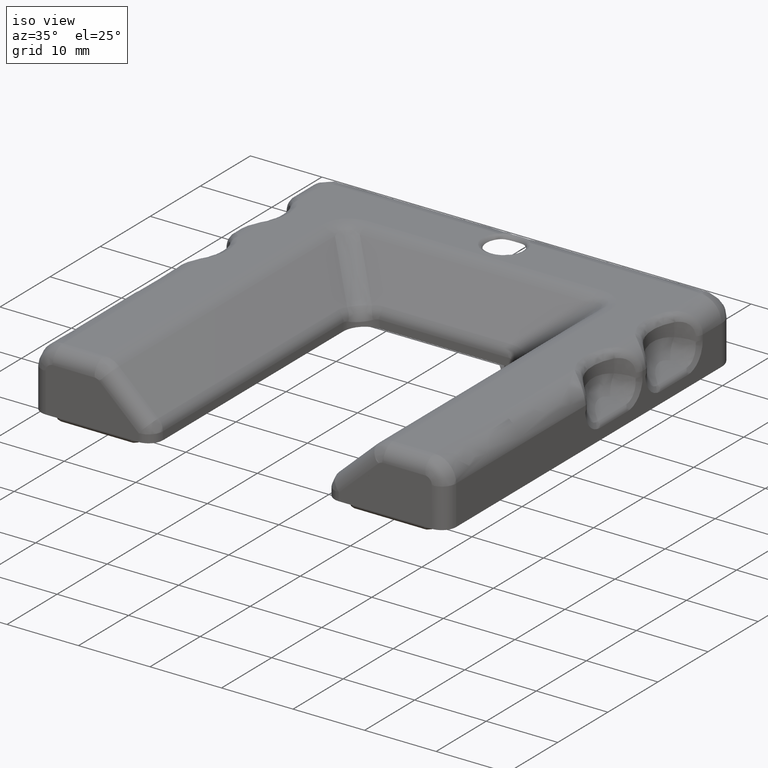
[diagram: clean part render]
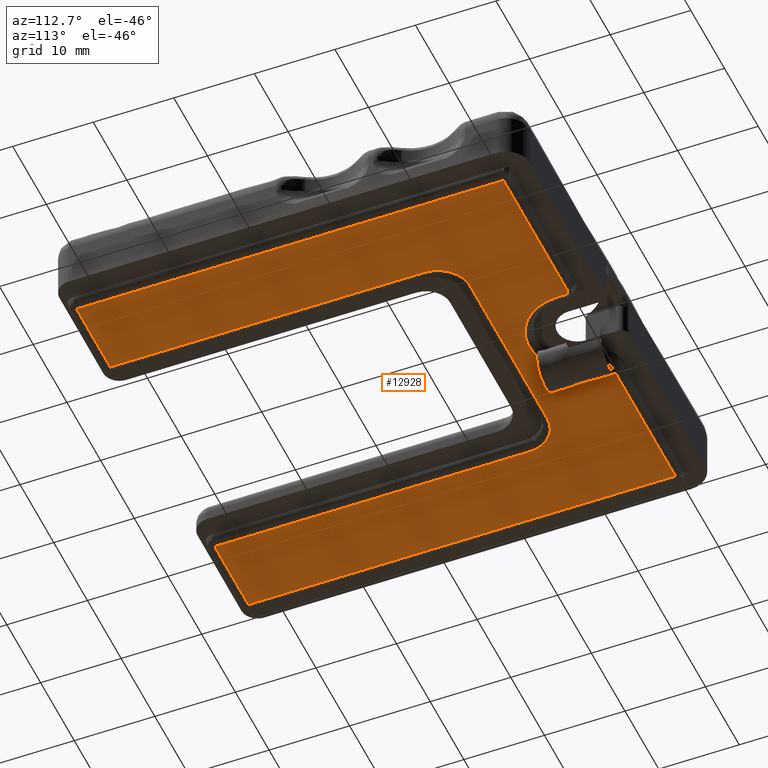
[diagram: tour spotlight — one face highlighted and labeled with its STEP entity id]
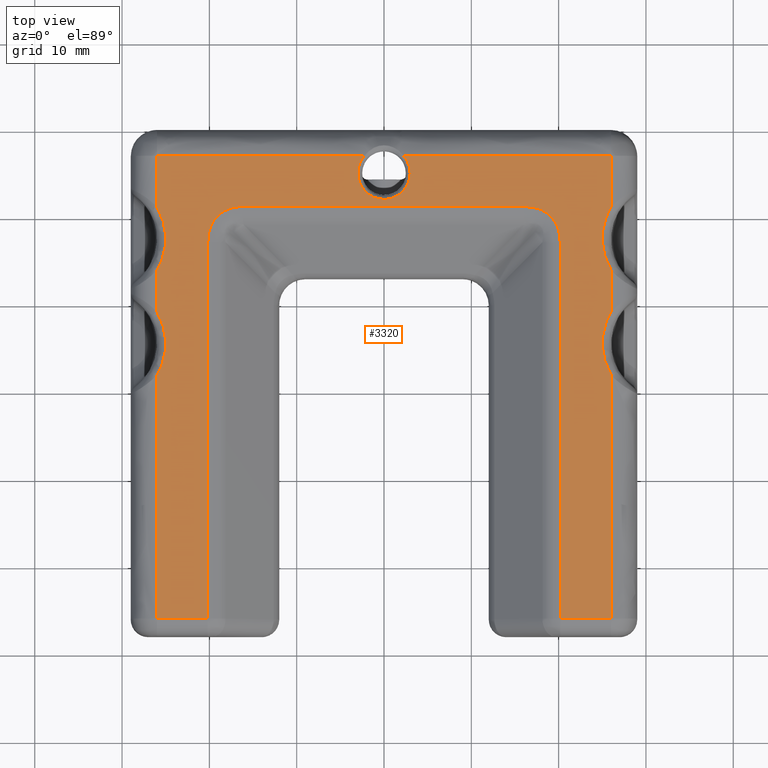
[diagram: tour spotlight — one face highlighted and labeled with its STEP entity id]
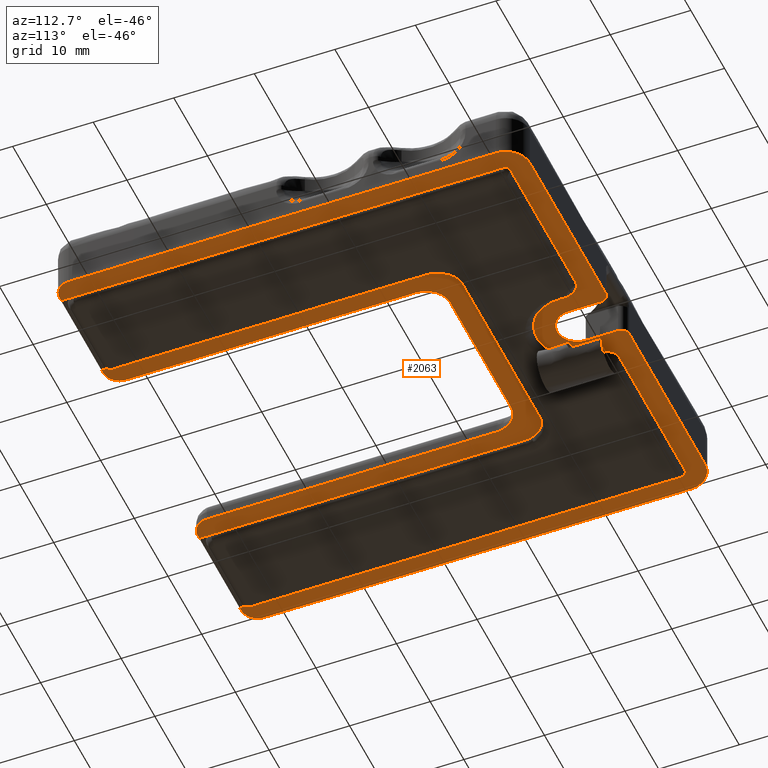
[diagram: tour spotlight — one face highlighted and labeled with its STEP entity id]
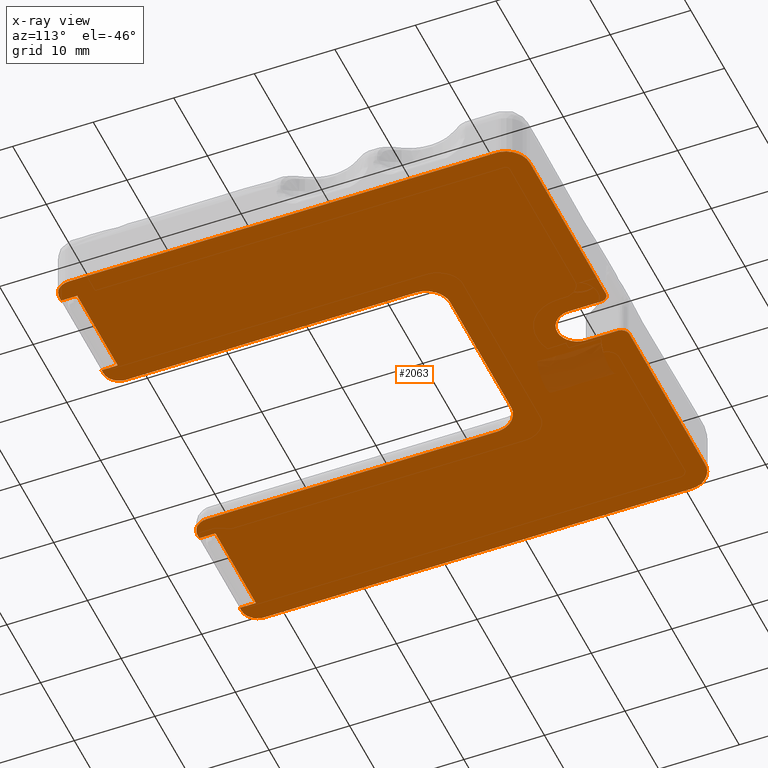
[diagram: x-ray of the same camera — body ghosted, this tour face saturated]
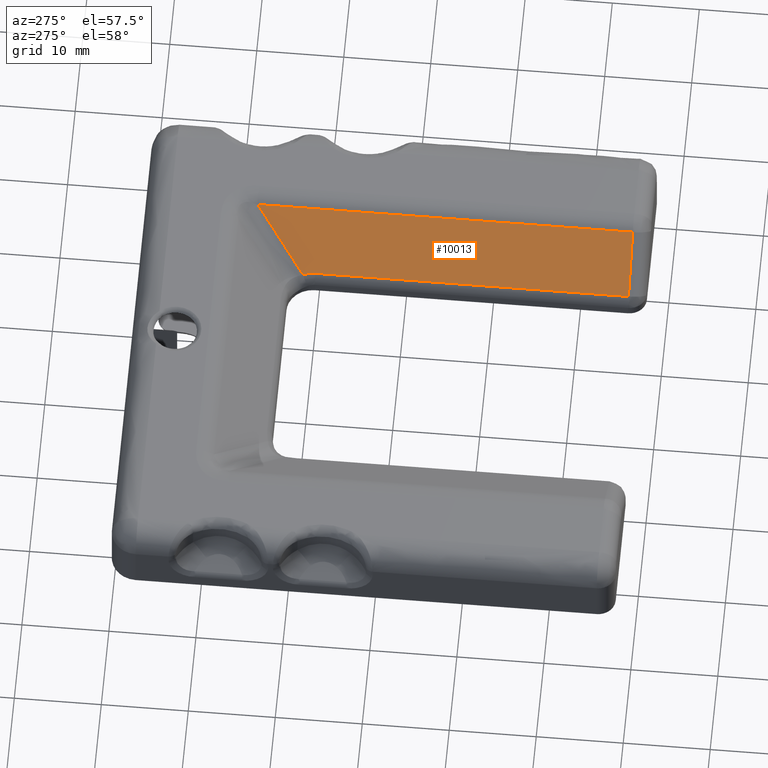
[diagram: tour spotlight — one face highlighted and labeled with its STEP entity id]
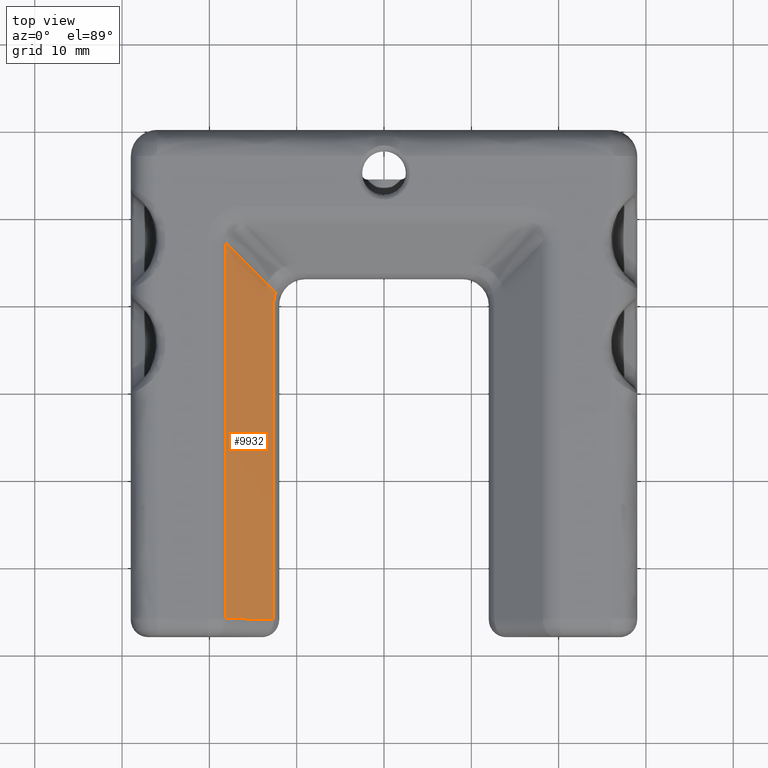
[diagram: tour spotlight — one face highlighted and labeled with its STEP entity id]
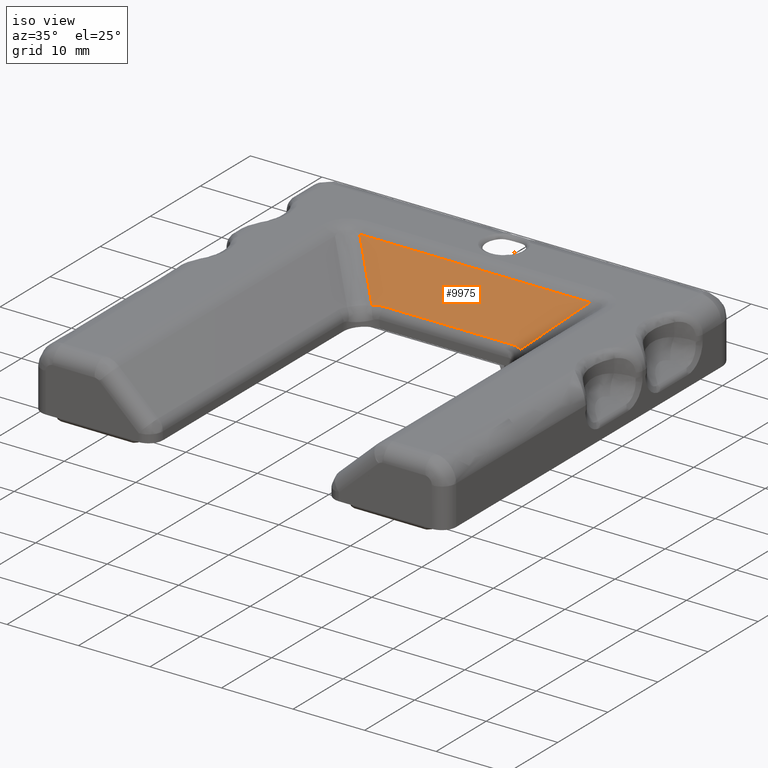
[diagram: tour spotlight — one face highlighted and labeled with its STEP entity id]
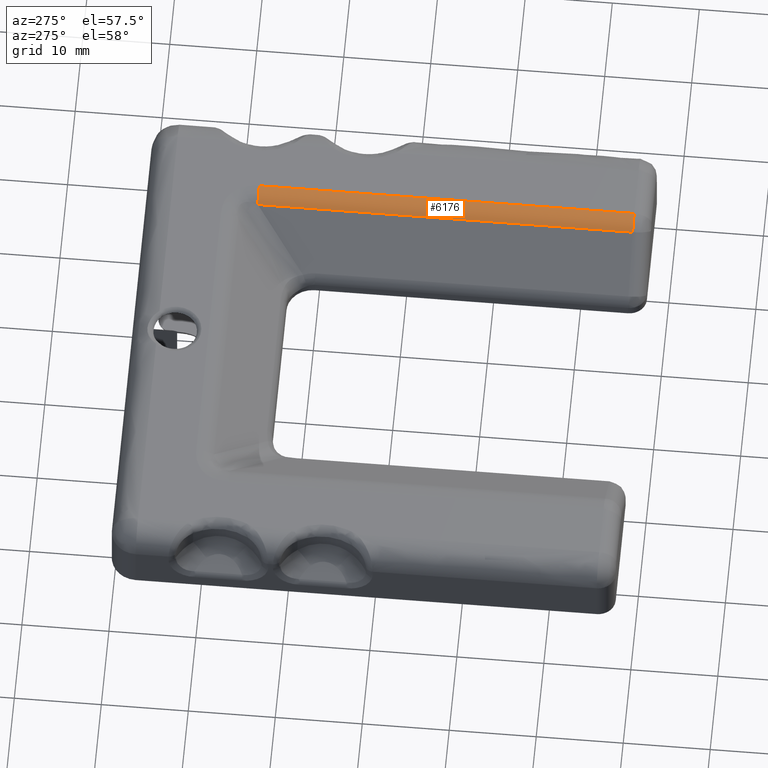
[diagram: tour spotlight — one face highlighted and labeled with its STEP entity id]
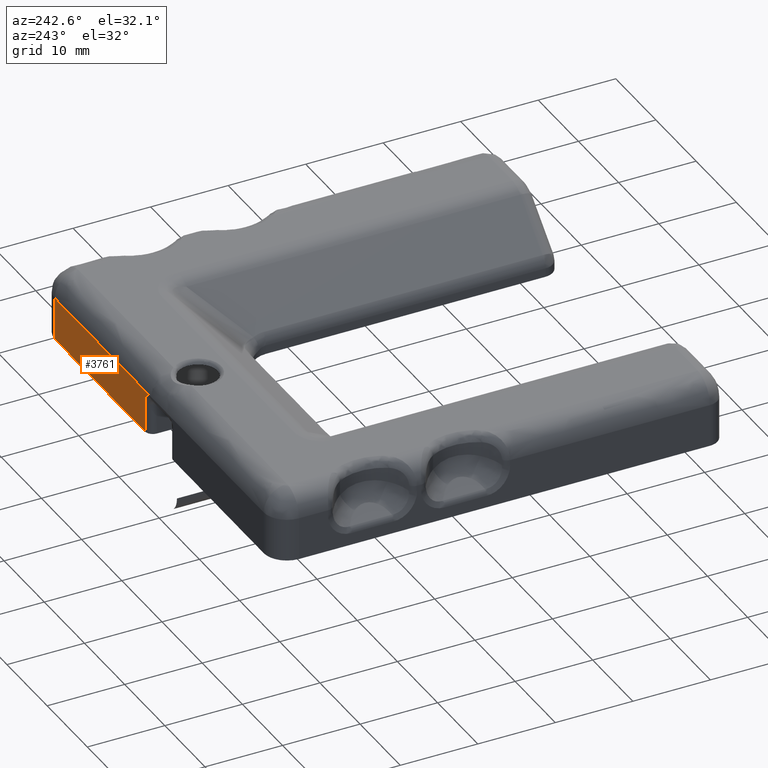
[diagram: tour spotlight — one face highlighted and labeled with its STEP entity id]
A machine part: a face-by-face anatomy tour. The part has 187 B-rep faces; the first image is the clean iso view, then the 8 largest visible faces are spotlighted one at a time (largest first), each with its STEP entity span.

Face 1 — auxiliary view, entity #12928. In plain terms, the highlighted face is a freeform B-spline surface patch.
Definition (entity closure, byte-faithful):
#11896=CARTESIAN_POINT('',(-15.500000000689150,-56.499999999868898,1.037854E-014));
#11897=VERTEX_POINT('',#11896);
#11912=CARTESIAN_POINT('',(-25.500000000690552,-56.499999999868898,1.037854E-014));
#11913=VERTEX_POINT('',#11912);
#11927=CARTESIAN_POINT('',(-15.500000000689150,-56.499999999868898,1.037854E-014));
#11928=CARTESIAN_POINT('',(-25.500000000690552,-56.499999999868898,1.037854E-014));
#11929=QUASI_UNIFORM_CURVE('',1,(#11927,#11928),.UNSPECIFIED.,.F.,.U.);
#11930=EDGE_CURVE('',#11897,#11913,#11929,.T.);
#12033=CARTESIAN_POINT('',(25.499999999128850,-56.500000000021302,1.037854E-014));
#12034=VERTEX_POINT('',#12033);
#12049=CARTESIAN_POINT('',(15.499999999127651,-56.499999999961602,1.037854E-014));
#12050=VERTEX_POINT('',#12049);
#12064=CARTESIAN_POINT('',(25.499999999128850,-56.500000000021302,1.037854E-014));
#12065=CARTESIAN_POINT('',(15.499999999127651,-56.499999999961602,1.037854E-014));
#12066=QUASI_UNIFORM_CURVE('',1,(#12064,#12065),.UNSPECIFIED.,.F.,.U.);
#12067=EDGE_CURVE('',#12034,#12050,#12066,.T.);
#12172=CARTESIAN_POINT('',(25.499999999128850,-3.500000000000000,6.429183E-016));
#12173=VERTEX_POINT('',#12172);
#12174=CARTESIAN_POINT('',(25.499999999128850,-3.500000000000000,6.429183E-016));
#12175=CARTESIAN_POINT('',(25.499999999128850,-56.500000000021302,1.037854E-014));
#12176=QUASI_UNIFORM_CURVE('',1,(#12174,#12175),.UNSPECIFIED.,.F.,.U.);
#12177=EDGE_CURVE('',#12173,#12034,#12176,.T.);
#12266=CARTESIAN_POINT('',(6.499999999220280,-3.500000000000000,6.429183E-016));
#12267=VERTEX_POINT('',#12266);
#12283=CARTESIAN_POINT('',(6.499999999220280,-3.500000000000000,6.429183E-016));
#12284=CARTESIAN_POINT('',(25.499999999128850,-3.500000000000000,6.429183E-016));
#12285=QUASI_UNIFORM_CURVE('',1,(#12283,#12284),.UNSPECIFIED.,.F.,.U.);
#12286=EDGE_CURVE('',#12267,#12173,#12285,.T.);
#12329=CARTESIAN_POINT('',(5.999999999220280,-4.0,7.347638E-016));
#12330=VERTEX_POINT('',#12329);
#12346=CARTESIAN_POINT('',(5.999999999220280,-4.0,7.347638E-016));
#12347=CARTESIAN_POINT('',(5.999999999220280,-3.499999999999999,6.429183E-016));
#12348=CARTESIAN_POINT('',(6.499999999220280,-3.500000000000000,6.429183E-016));
#12356=(BOUNDED_CURVE()B_SPLINE_CURVE(2,(#12346,#12347,#12348),.UNSPECIFIED.,.F.,.U.)CURVE()GEOMETRIC_REPRESENTATION_ITEM()QUASI_UNIFORM_CURVE()RATIONAL_B_SPLINE_CURVE((1.0,0.707106781186548,1.0))REPRESENTATION_ITEM(''));
#12357=EDGE_CURVE('',#12330,#12267,#12356,.T.);
#12376=CARTESIAN_POINT('',(5.999999999220280,-4.999999999864710,9.184548E-016));
#12377=VERTEX_POINT('',#12376);
#12393=CARTESIAN_POINT('',(5.999999999220280,-4.999999999864710,9.184548E-016));
#12394=CARTESIAN_POINT('',(5.999999999220280,-4.0,7.347638E-016));
#12395=QUASI_UNIFORM_CURVE('',1,(#12393,#12394),.UNSPECIFIED.,.F.,.U.);
#12396=EDGE_CURVE('',#12377,#12330,#12395,.T.);
#12424=CARTESIAN_POINT('',(-6.000000000779890,-4.999999999864520,9.184548E-016));
#12425=VERTEX_POINT('',#12424);
#12441=CARTESIAN_POINT('',(-6.000000000779890,-4.999999999864520,9.184548E-016));
#12442=CARTESIAN_POINT('',(-6.000002101522727,-5.245421373970643,9.635365E-016));
#12443=CARTESIAN_POINT('',(-5.963833687311443,-5.834466316835937,1.071739E-015));
#12444=CARTESIAN_POINT('',(-5.785269250170360,-6.677969670517542,1.226683E-015));
#12445=CARTESIAN_POINT('',(-5.454178438548438,-7.552175688711985,1.387266E-015));
#12446=CARTESIAN_POINT('',(-4.950053945205064,-8.455122481021880,1.553130E-015));
#12447=CARTESIAN_POINT('',(-4.330005169970780,-9.191994046902694,1.688486E-015));
#12448=CARTESIAN_POINT('',(-3.529881557031800,-9.882184528706475,1.815268E-015));
#12449=CARTESIAN_POINT('',(-2.713633247057258,-10.392078080778210,1.908931E-015));
#12450=CARTESIAN_POINT('',(-1.725299915870320,-10.773272873972900,1.978953E-015));
#12451=CARTESIAN_POINT('',(-0.714088158272644,-10.987356916152089,2.018278E-015));
#12452=CARTESIAN_POINT('',(0.320997339088535,-11.025500469079130,2.025285E-015));
#12453=CARTESIAN_POINT('',(1.393161260005287,-10.866439513177330,1.996067E-015));
#12454=CARTESIAN_POINT('',(2.305408448672325,-10.565051709251151,1.940704E-015));
#12455=CARTESIAN_POINT('',(3.269284795315643,-10.072544649261770,1.850235E-015));
#12456=CARTESIAN_POINT('',(4.110934916847927,-9.423964392794570,1.731097E-015));
#12457=CARTESIAN_POINT('',(4.758742839031648,-8.682101389753761,1.594823E-015));
#12458=CARTESIAN_POINT('',(5.222920555403936,-7.987408026573848,1.467215E-015));
#12459=CARTESIAN_POINT('',(5.583793644316723,-7.259421848413220,1.333490E-015));
#12460=CARTESIAN_POINT('',(5.910819619311151,-6.227124070992177,1.143866E-015));
#12461=CARTESIAN_POINT('',(6.000109187746081,-5.466334195529260,1.004116E-015));
#12462=CARTESIAN_POINT('',(5.999999999220280,-4.999999999864710,9.184548E-016));
#12463=B_SPLINE_CURVE_WITH_KNOTS('',3,(#12441,#12442,#12443,#12444,#12445,#12446,#12447,#12448,#12449,#12450,#12451,#12452,#12453,#12454,#12455,#12456,#12457,#12458,#12459,#12460,#12461,#12462),.UNSPECIFIED.,.F.,.U.,(4,1,1,1,1,1,1,1,1,1,1,1,1,1,1,1,1,1,1,4),(0.000000087363439,0.736272149289789,1.767130370784695,2.577101049195452,3.534314369643361,4.859684940303806,5.448736410810778,6.700480458458342,7.731342796451958,8.614927566550637,9.792967259478086,10.823809909799399,11.854655219998090,12.664617345115850,14.063624489541819,15.020845217523140,15.609888557833440,16.567122130300721,17.450697479833391,18.849674194571492),.UNSPECIFIED.);
#12464=EDGE_CURVE('',#12425,#12377,#12463,.T.);
#12483=CARTESIAN_POINT('',(-6.000000000779890,-4.0,7.347638E-016));
#12484=VERTEX_POINT('',#12483);
#12500=CARTESIAN_POINT('',(-6.000000000779890,-4.0,7.347638E-016));
#12501=CARTESIAN_POINT('',(-6.000000000779890,-4.999999999864520,9.184548E-016));
#12502=QUASI_UNIFORM_CURVE('',1,(#12500,#12501),.UNSPECIFIED.,.F.,.U.);
#12503=EDGE_CURVE('',#12484,#12425,#12502,.T.);
#12546=CARTESIAN_POINT('',(-6.500000000779890,-3.500000000000000,6.429183E-016));
#12547=VERTEX_POINT('',#12546);
#12563=CARTESIAN_POINT('',(-6.500000000779890,-3.500000000000000,6.429183E-016));
#12564=CARTESIAN_POINT('',(-6.000000000779890,-3.499999999999999,6.429183E-016));
#12565=CARTESIAN_POINT('',(-6.000000000779890,-4.0,7.347638E-016));
#12573=(BOUNDED_CURVE()B_SPLINE_CURVE(2,(#12563,#12564,#12565),.UNSPECIFIED.,.F.,.U.)CURVE()GEOMETRIC_REPRESENTATION_ITEM()QUASI_UNIFORM_CURVE()RATIONAL_B_SPLINE_CURVE((1.0,0.707106781186548,1.0))REPRESENTATION_ITEM(''));
#12574=EDGE_CURVE('',#12547,#12484,#12573,.T.);
#12593=CARTESIAN_POINT('',(-25.500000000690552,-3.500000000000000,6.429183E-016));
#12594=VERTEX_POINT('',#12593);
#12610=CARTESIAN_POINT('',(-25.500000000690552,-3.500000000000000,6.429183E-016));
#12611=CARTESIAN_POINT('',(-6.500000000779890,-3.500000000000000,6.429183E-016));
#12612=QUASI_UNIFORM_CURVE('',1,(#12610,#12611),.UNSPECIFIED.,.F.,.U.);
#12613=EDGE_CURVE('',#12594,#12547,#12612,.T.);
#12687=CARTESIAN_POINT('',(-25.500000000690552,-56.499999999868898,1.037854E-014));
#12688=CARTESIAN_POINT('',(-25.500000000690552,-3.500000000000000,6.429183E-016));
#12689=QUASI_UNIFORM_CURVE('',1,(#12687,#12688),.UNSPECIFIED.,.F.,.U.);
#12690=EDGE_CURVE('',#11913,#12594,#12689,.T.);
#12715=CARTESIAN_POINT('',(-15.500000000689150,-17.499999999998749,3.214592E-015));
#12716=VERTEX_POINT('',#12715);
#12717=CARTESIAN_POINT('',(-15.500000000689150,-17.499999999998749,3.214592E-015));
#12718=CARTESIAN_POINT('',(-15.500000000689150,-56.499999999868898,1.037854E-014));
#12719=QUASI_UNIFORM_CURVE('',1,(#12717,#12718),.UNSPECIFIED.,.F.,.U.);
#12720=EDGE_CURVE('',#12716,#11897,#12719,.T.);
#12756=CARTESIAN_POINT('',(-11.500000000689161,-13.499999999998719,2.479828E-015));
#12757=VERTEX_POINT('',#12756);
#12773=CARTESIAN_POINT('',(-11.500000000689161,-13.499999999998719,2.479828E-015));
#12774=CARTESIAN_POINT('',(-11.909086227678470,-13.499788042424299,2.479789E-015));
#12775=CARTESIAN_POINT('',(-12.596181568990101,-13.606384569468970,2.499370E-015));
#12776=CARTESIAN_POINT('',(-13.380375774390970,-13.948304707368150,2.562177E-015));
#12777=CARTESIAN_POINT('',(-13.929996179220479,-14.305925022006161,2.627869E-015));
#12778=CARTESIAN_POINT('',(-14.474080433133910,-14.780936212981210,2.715124E-015));
#12779=CARTESIAN_POINT('',(-14.929875883863239,-15.387733823632070,2.826587E-015));
#12780=CARTESIAN_POINT('',(-15.231443723371230,-16.025552839703249,2.943749E-015));
#12781=CARTESIAN_POINT('',(-15.439400307750111,-16.681916488594471,3.064317E-015));
#12782=CARTESIAN_POINT('',(-15.500096289685461,-17.172742608485180,3.154477E-015));
#12783=CARTESIAN_POINT('',(-15.500000000689150,-17.499999999998749,3.214592E-015));
#12784=B_SPLINE_CURVE_WITH_KNOTS('',3,(#12773,#12774,#12775,#12776,#12777,#12778,#12779,#12780,#12781,#12782,#12783),.UNSPECIFIED.,.F.,.U.,(4,1,1,1,1,1,1,1,4),(0.000000054619978,1.227191168182504,2.061683759883673,2.552574473398197,3.190683988307032,4.221539421705779,4.810594064417444,5.301480294392392,6.283224731502440),.UNSPECIFIED.);
#12785=EDGE_CURVE('',#12757,#12716,#12784,.T.);
#12804=CARTESIAN_POINT('',(11.499999999127620,-13.499999999998719,2.479828E-015));
#12805=VERTEX_POINT('',#12804);
#12821=CARTESIAN_POINT('',(11.499999999127620,-13.499999999998719,2.479828E-015));
#12822=CARTESIAN_POINT('',(-11.500000000689161,-13.499999999998719,2.479828E-015));
#12823=QUASI_UNIFORM_CURVE('',1,(#12821,#12822),.UNSPECIFIED.,.F.,.U.);
#12824=EDGE_CURVE('',#12805,#12757,#12823,.T.);
#12846=CARTESIAN_POINT('',(15.499999999127651,-17.499999999998700,3.214592E-015));
#12847=VERTEX_POINT('',#12846);
#12863=CARTESIAN_POINT('',(15.499999999127620,-17.499999999998700,3.214592E-015));
#12864=CARTESIAN_POINT('',(15.499999999127617,-13.499999999998698,2.479828E-015));
#12865=CARTESIAN_POINT('',(11.499999999127620,-13.499999999998700,2.479828E-015));
#12873=(BOUNDED_CURVE()B_SPLINE_CURVE(2,(#12863,#12864,#12865),.UNSPECIFIED.,.F.,.U.)CURVE()GEOMETRIC_REPRESENTATION_ITEM()QUASI_UNIFORM_CURVE()RATIONAL_B_SPLINE_CURVE((1.0,0.707106781186548,1.0))REPRESENTATION_ITEM(''));
#12874=EDGE_CURVE('',#12847,#12805,#12873,.T.);
#12893=CARTESIAN_POINT('',(15.499999999127651,-56.499999999961602,1.037854E-014));
#12894=CARTESIAN_POINT('',(15.499999999127651,-17.499999999998700,3.214592E-015));
#12895=QUASI_UNIFORM_CURVE('',1,(#12893,#12894),.UNSPECIFIED.,.F.,.U.);
#12896=EDGE_CURVE('',#12050,#12847,#12895,.T.);
#12905=CARTESIAN_POINT('',(-28.047449901833630,-0.852650102723224,1.566241E-016));
#12906=CARTESIAN_POINT('',(28.047451268198540,-0.852650102723224,1.566241E-016));
#12907=CARTESIAN_POINT('',(-28.047449901833630,-59.147351318868857,1.086483E-014));
#12908=CARTESIAN_POINT('',(28.047451268198540,-59.147351318868857,1.086483E-014));
#12909=B_SPLINE_SURFACE_WITH_KNOTS('',1,1,((#12905,#12907),(#12906,#12908)),.UNSPECIFIED.,.F.,.F.,.U.,(2,2),(2,2),(0.0,56.094901170032173),(0.0,58.294701216145633),.UNSPECIFIED.);
#12910=ORIENTED_EDGE('',*,*,#12720,.T.);
#12911=ORIENTED_EDGE('',*,*,#11930,.T.);
#12912=ORIENTED_EDGE('',*,*,#12690,.T.);
#12913=ORIENTED_EDGE('',*,*,#12613,.T.);
#12914=ORIENTED_EDGE('',*,*,#12574,.T.);
#12915=ORIENTED_EDGE('',*,*,#12503,.T.);
#12916=ORIENTED_EDGE('',*,*,#12464,.T.);
#12917=ORIENTED_EDGE('',*,*,#12396,.T.);
#12918=ORIENTED_EDGE('',*,*,#12357,.T.);
#12919=ORIENTED_EDGE('',*,*,#12286,.T.);
#12920=ORIENTED_EDGE('',*,*,#12177,.T.);
#12921=ORIENTED_EDGE('',*,*,#12067,.T.);
#12922=ORIENTED_EDGE('',*,*,#12896,.T.);
#12923=ORIENTED_EDGE('',*,*,#12874,.T.);
#12924=ORIENTED_EDGE('',*,*,#12824,.T.);
#12925=ORIENTED_EDGE('',*,*,#12785,.T.);
#12926=EDGE_LOOP('',(#12910,#12911,#12912,#12913,#12914,#12915,#12916,#12917,#12918,#12919,#12920,#12921,#12922,#12923,#12924,#12925));
#12927=FACE_OUTER_BOUND('',#12926,.T.);
#12928=ADVANCED_FACE('',(#12927),#12909,.T.);

Face 2 — top view, entity #3320. In plain terms, the highlighted face is a freeform B-spline surface patch.
Definition (entity closure, byte-faithful):
#698=CARTESIAN_POINT('',(26.000009043093829,-20.895428440489251,9.499999999977391));
#699=VERTEX_POINT('',#698);
#1383=CARTESIAN_POINT('',(26.000007963906800,-16.104570362644399,9.499999999983478));
#1384=VERTEX_POINT('',#1383);
#1420=CARTESIAN_POINT('',(26.000009043093829,-20.895428440489251,9.499999999977391));
#1421=CARTESIAN_POINT('',(26.000007963906800,-16.104570362644399,9.499999999983478));
#1422=QUASI_UNIFORM_CURVE('',1,(#1420,#1421),.UNSPECIFIED.,.F.,.U.);
#1423=EDGE_CURVE('',#699,#1384,#1422,.T.);
#1445=CARTESIAN_POINT('',(25.999999999131049,-28.104561531966802,9.500000000004704));
#1446=VERTEX_POINT('',#1445);
#1461=CARTESIAN_POINT('',(25.999999999131049,-28.104561531966802,9.500000000004704));
#1462=CARTESIAN_POINT('',(23.833238684661197,-24.499994986228032,9.499999999991033));
#1463=CARTESIAN_POINT('',(26.000009043093829,-20.895428440489251,9.499999999977391));
#1471=(BOUNDED_CURVE()B_SPLINE_CURVE(2,(#1461,#1462,#1463),.UNSPECIFIED.,.F.,.U.)CURVE()GEOMETRIC_REPRESENTATION_ITEM()QUASI_UNIFORM_CURVE()RATIONAL_B_SPLINE_CURVE((1.0,0.857070002133436,1.0))REPRESENTATION_ITEM(''));
#1472=EDGE_CURVE('',#1446,#699,#1471,.T.);
#1688=CARTESIAN_POINT('',(25.999999999131049,-8.895438468026628,9.500000000004581));
#1689=VERTEX_POINT('',#1688);
#1690=CARTESIAN_POINT('',(25.999999999131049,-3.000000000000093,9.500000000004549));
#1691=VERTEX_POINT('',#1690);
#1692=CARTESIAN_POINT('',(25.999999999131049,-8.895438468026628,9.500000000004581));
#1693=CARTESIAN_POINT('',(25.999999999131049,-3.000000000000093,9.500000000004549));
#1694=QUASI_UNIFORM_CURVE('',1,(#1692,#1693),.UNSPECIFIED.,.F.,.U.);
#1695=EDGE_CURVE('',#1689,#1691,#1694,.T.);
#2284=CARTESIAN_POINT('',(25.999999999131049,-56.000000000020400,9.500000000004871));
#2285=VERTEX_POINT('',#2284);
#2286=CARTESIAN_POINT('',(25.999999999131049,-56.000000000020400,9.500000000004871));
#2287=CARTESIAN_POINT('',(25.999999999131049,-28.104561531966802,9.500000000004704));
#2288=QUASI_UNIFORM_CURVE('',1,(#2286,#2287),.UNSPECIFIED.,.F.,.U.);
#2289=EDGE_CURVE('',#2285,#1446,#2288,.T.);
#3135=CARTESIAN_POINT('',(-28.597409845906888,-58.647349897297133,9.500000000004601));
#3136=CARTESIAN_POINT('',(-28.597409845906888,-0.352648681152591,9.500000000004590));
#3137=CARTESIAN_POINT('',(28.597411240471182,-58.647349897297133,9.500000000004601));
#3138=CARTESIAN_POINT('',(28.597411240471182,-0.352648681152591,9.500000000004590));
#3139=B_SPLINE_SURFACE_WITH_KNOTS('',1,1,((#3135,#3137),(#3136,#3138)),.UNSPECIFIED.,.F.,.F.,.U.,(2,2),(2,2),(0.0,58.294701216144539),(0.0,57.194821086378070),.UNSPECIFIED.);
#3140=CARTESIAN_POINT('',(-25.999999999495749,-3.000000000000093,9.500000000004549));
#3141=VERTEX_POINT('',#3140);
#3142=CARTESIAN_POINT('',(-25.999999999495749,-8.895438467871188,9.500000000004581));
#3143=VERTEX_POINT('',#3142);
#3144=CARTESIAN_POINT('',(-25.999999999495749,-3.000000000000093,9.500000000004549));
#3145=CARTESIAN_POINT('',(-25.999999999495749,-8.895438467871188,9.500000000004581));
#3146=QUASI_UNIFORM_CURVE('',1,(#3144,#3145),.UNSPECIFIED.,.F.,.U.);
#3147=EDGE_CURVE('',#3141,#3143,#3146,.T.);
#3148=ORIENTED_EDGE('',*,*,#3147,.T.);
#3149=CARTESIAN_POINT('',(-25.999999999495749,-16.104561531811349,9.500000000004622));
#3150=VERTEX_POINT('',#3149);
#3151=CARTESIAN_POINT('',(-25.999999999495749,-8.895438467871188,9.500000000004581));
#3152=CARTESIAN_POINT('',(-23.833234161969816,-12.499999999841267,9.500000000004603));
#3153=CARTESIAN_POINT('',(-26.000000000441499,-16.104561531242840,9.500000000004604));
#3161=(BOUNDED_CURVE()B_SPLINE_CURVE(2,(#3151,#3152,#3153),.UNSPECIFIED.,.F.,.U.)CURVE()GEOMETRIC_REPRESENTATION_ITEM()QUASI_UNIFORM_CURVE()RATIONAL_B_SPLINE_CURVE((1.0,0.857070002043516,1.0))REPRESENTATION_ITEM(''));
#3162=EDGE_CURVE('',#3143,#3150,#3161,.T.);
#3163=ORIENTED_EDGE('',*,*,#3162,.T.);
#3164=CARTESIAN_POINT('',(-26.000009043278698,-20.895428440134399,9.499999999977394));
#3165=VERTEX_POINT('',#3164);
#3166=CARTESIAN_POINT('',(-25.999999999495749,-16.104561531811349,9.500000000004622));
#3167=CARTESIAN_POINT('',(-26.000009043278698,-20.895428440134399,9.499999999977394));
#3168=QUASI_UNIFORM_CURVE('',1,(#3166,#3167),.UNSPECIFIED.,.F.,.U.);
#3169=EDGE_CURVE('',#3150,#3165,#3168,.T.);
#3170=ORIENTED_EDGE('',*,*,#3169,.T.);
#3171=CARTESIAN_POINT('',(-25.999999999495749,-28.104561531813300,9.500000000004695));
#3172=VERTEX_POINT('',#3171);
#3173=CARTESIAN_POINT('',(-26.000009043278698,-20.895428440134399,9.499999999977394));
#3174=CARTESIAN_POINT('',(-23.833238684045128,-24.499994986258368,9.499999999991045));
#3175=CARTESIAN_POINT('',(-25.999999999495749,-28.104561531813300,9.500000000004695));
#3183=(BOUNDED_CURVE()B_SPLINE_CURVE(2,(#3173,#3174,#3175),.UNSPECIFIED.,.F.,.U.)CURVE()GEOMETRIC_REPRESENTATION_ITEM()QUASI_UNIFORM_CURVE()RATIONAL_B_SPLINE_CURVE((1.0,0.857070002112509,1.0))REPRESENTATION_ITEM(''));
#3184=EDGE_CURVE('',#3165,#3172,#3183,.T.);
#3185=ORIENTED_EDGE('',*,*,#3184,.T.);
#3186=CARTESIAN_POINT('',(-25.999999999495749,-55.999999999868997,9.500000000004871));
#3187=VERTEX_POINT('',#3186);
#3188=CARTESIAN_POINT('',(-25.999999999495749,-28.104561531813300,9.500000000004695));
#3189=CARTESIAN_POINT('',(-25.999999999495749,-55.999999999868997,9.500000000004871));
#3190=QUASI_UNIFORM_CURVE('',1,(#3188,#3189),.UNSPECIFIED.,.F.,.U.);
#3191=EDGE_CURVE('',#3172,#3187,#3190,.T.);
#3192=ORIENTED_EDGE('',*,*,#3191,.T.);
#3193=CARTESIAN_POINT('',(-20.178070733974248,-55.999999999868997,9.500000000004871));
#3194=VERTEX_POINT('',#3193);
#3195=CARTESIAN_POINT('',(-25.999999999495749,-55.999999999868997,9.500000000004871));
#3196=CARTESIAN_POINT('',(-20.178070733974248,-55.999999999868997,9.500000000004871));
#3197=QUASI_UNIFORM_CURVE('',1,(#3195,#3196),.UNSPECIFIED.,.F.,.U.);
#3198=EDGE_CURVE('',#3187,#3194,#3197,.T.);
#3199=ORIENTED_EDGE('',*,*,#3198,.T.);
#3200=CARTESIAN_POINT('',(-20.178070733974049,-12.904635863469901,9.500000000004611));
#3201=VERTEX_POINT('',#3200);
#3202=CARTESIAN_POINT('',(-20.178070733974248,-55.999999999868997,9.500000000004871));
#3203=CARTESIAN_POINT('',(-20.178070733974049,-12.904635863469901,9.500000000004611));
#3204=QUASI_UNIFORM_CURVE('',1,(#3202,#3203),.UNSPECIFIED.,.F.,.U.);
#3205=EDGE_CURVE('',#3194,#3201,#3204,.T.);
#3206=ORIENTED_EDGE('',*,*,#3205,.T.);
#3207=CARTESIAN_POINT('',(-16.095364137807550,-8.821929267303418,9.500000000004581));
#3208=VERTEX_POINT('',#3207);
#3209=CARTESIAN_POINT('',(-20.178070733974039,-12.904635863469920,9.500000000004583));
#3210=CARTESIAN_POINT('',(-20.178070733974067,-8.821929267303464,9.500000000004558));
#3211=CARTESIAN_POINT('',(-16.095364137807572,-8.821929267303398,9.500000000004558));
#3219=(BOUNDED_CURVE()B_SPLINE_CURVE(2,(#3209,#3210,#3211),.UNSPECIFIED.,.F.,.U.)CURVE()GEOMETRIC_REPRESENTATION_ITEM()QUASI_UNIFORM_CURVE()RATIONAL_B_SPLINE_CURVE((1.0,0.876637411185005,1.0))REPRESENTATION_ITEM(''));
#3220=EDGE_CURVE('',#3201,#3208,#3219,.T.);
#3221=ORIENTED_EDGE('',*,*,#3220,.T.);
#3222=CARTESIAN_POINT('',(16.095364137730300,-8.821929267303299,9.500000000004581));
#3223=VERTEX_POINT('',#3222);
#3224=CARTESIAN_POINT('',(-16.095364137807550,-8.821929267303418,9.500000000004581));
#3225=CARTESIAN_POINT('',(16.095364137730300,-8.821929267303299,9.500000000004581));
#3226=QUASI_UNIFORM_CURVE('',1,(#3224,#3225),.UNSPECIFIED.,.F.,.U.);
#3227=EDGE_CURVE('',#3208,#3223,#3226,.T.);
#3228=ORIENTED_EDGE('',*,*,#3227,.T.);
#3229=CARTESIAN_POINT('',(20.178070733896750,-12.904635863494160,9.500000000004611));
#3230=VERTEX_POINT('',#3229);
#3231=CARTESIAN_POINT('',(16.095364137730300,-8.821929267303299,9.500000000004581));
#3232=CARTESIAN_POINT('',(20.178070733921196,-8.821929267303258,9.500000000004620));
#3233=CARTESIAN_POINT('',(20.178070733896931,-12.904635863493970,9.500000000004643));
#3241=(BOUNDED_CURVE()B_SPLINE_CURVE(2,(#3231,#3232,#3233),.UNSPECIFIED.,.F.,.U.)CURVE()GEOMETRIC_REPRESENTATION_ITEM()QUASI_UNIFORM_CURVE()RATIONAL_B_SPLINE_CURVE((1.0,0.876637411184217,1.0))REPRESENTATION_ITEM(''));
#3242=EDGE_CURVE('',#3223,#3230,#3241,.T.);
#3243=ORIENTED_EDGE('',*,*,#3242,.T.);
#3244=CARTESIAN_POINT('',(20.178070733639402,-55.999999999989598,9.500000000004871));
#3245=VERTEX_POINT('',#3244);
#3246=CARTESIAN_POINT('',(20.178070733896750,-12.904635863494160,9.500000000004611));
#3247=CARTESIAN_POINT('',(20.178070733639402,-55.999999999989598,9.500000000004871));
#3248=QUASI_UNIFORM_CURVE('',1,(#3246,#3247),.UNSPECIFIED.,.F.,.U.);
#3249=EDGE_CURVE('',#3230,#3245,#3248,.T.);
#3250=ORIENTED_EDGE('',*,*,#3249,.T.);
#3251=CARTESIAN_POINT('',(20.178070733639402,-55.999999999989598,9.500000000004871));
#3252=CARTESIAN_POINT('',(25.999999999131049,-56.000000000020400,9.500000000004871));
#3253=QUASI_UNIFORM_CURVE('',1,(#3251,#3252),.UNSPECIFIED.,.F.,.U.);
#3254=EDGE_CURVE('',#3245,#2285,#3253,.T.);
#3255=ORIENTED_EDGE('',*,*,#3254,.T.);
#3256=ORIENTED_EDGE('',*,*,#2289,.T.);
#3257=ORIENTED_EDGE('',*,*,#1472,.T.);
#3258=ORIENTED_EDGE('',*,*,#1423,.T.);
#3259=CARTESIAN_POINT('',(26.000007963906800,-16.104570362644399,9.499999999983478));
#3260=CARTESIAN_POINT('',(23.833238144568149,-12.500004414976312,9.499999999994028));
#3261=CARTESIAN_POINT('',(25.999999999131049,-8.895438468026628,9.500000000004581));
#3269=(BOUNDED_CURVE()B_SPLINE_CURVE(2,(#3259,#3260,#3261),.UNSPECIFIED.,.F.,.U.)CURVE()GEOMETRIC_REPRESENTATION_ITEM()QUASI_UNIFORM_CURVE()RATIONAL_B_SPLINE_CURVE((1.0,0.857070002136195,1.0))REPRESENTATION_ITEM(''));
#3270=EDGE_CURVE('',#1384,#1689,#3269,.T.);
#3271=ORIENTED_EDGE('',*,*,#3270,.T.);
#3272=ORIENTED_EDGE('',*,*,#1695,.T.);
#3273=CARTESIAN_POINT('',(2.236067976841395,-3.000000000000093,9.500000000004549));
#3274=VERTEX_POINT('',#3273);
#3275=CARTESIAN_POINT('',(25.999999999131049,-3.000000000000093,9.500000000004549));
#3276=CARTESIAN_POINT('',(2.236067976841395,-3.000000000000093,9.500000000004549));
#3277=QUASI_UNIFORM_CURVE('',1,(#3275,#3276),.UNSPECIFIED.,.F.,.U.);
#3278=EDGE_CURVE('',#1691,#3274,#3277,.T.);
#3279=ORIENTED_EDGE('',*,*,#3278,.T.);
#3280=CARTESIAN_POINT('',(-2.236067978400815,-3.000000000000093,9.500000000004549));
#3281=VERTEX_POINT('',#3280);
#3282=CARTESIAN_POINT('',(2.236067976841395,-3.000000000000093,9.500000000004549));
#3283=CARTESIAN_POINT('',(2.403866029536717,-3.187498230722124,9.500000000004551));
#3284=CARTESIAN_POINT('',(2.640365228576125,-3.530507695784539,9.500000000004572));
#3285=CARTESIAN_POINT('',(2.870564541511067,-4.079226183590186,9.500000000004560));
#3286=CARTESIAN_POINT('',(2.988095898646027,-4.589188234485265,9.500000000004565));
#3287=CARTESIAN_POINT('',(3.011701971822686,-5.093923246201884,9.500000000004540));
#3288=CARTESIAN_POINT('',(2.957931378122610,-5.559331854010694,9.500000000004549));
#3289=CARTESIAN_POINT('',(2.824243154695806,-6.064513720187001,9.500000000004663));
#3290=CARTESIAN_POINT('',(2.565861801135606,-6.602891372676468,9.500000000004397));
#3291=CARTESIAN_POINT('',(2.171857588244503,-7.097955412952175,9.500000000004819));
#3292=CARTESIAN_POINT('',(1.758116659053878,-7.447072450601965,9.500000000004276));
#3293=CARTESIAN_POINT('',(1.356091864880967,-7.687608134728531,9.500000000004709));
#3294=CARTESIAN_POINT('',(0.890482578661283,-7.881981558646756,9.500000000004530));
#3295=CARTESIAN_POINT('',(0.378377961853581,-7.994175194698554,9.500000000004466));
#3296=CARTESIAN_POINT('',(-0.144361413693696,-8.008239846579230,9.500000000004812));
#3297=CARTESIAN_POINT('',(-0.662812647880013,-7.942695622758265,9.500000000004421));
#3298=CARTESIAN_POINT('',(-1.145540371248299,-7.790427298307399,9.500000000004608));
#3299=CARTESIAN_POINT('',(-1.639654381056493,-7.529847943558275,9.500000000004549));
#3300=CARTESIAN_POINT('',(-2.097651507244496,-7.177355930059403,9.500000000004564));
#3301=CARTESIAN_POINT('',(-2.470287916479988,-6.734142761400318,9.500000000004564));
#3302=CARTESIAN_POINT('',(-2.743135480667547,-6.246719959334338,9.500000000004562));
#3303=CARTESIAN_POINT('',(-2.928118497728850,-5.737935199402180,9.500000000004565));
#3304=CARTESIAN_POINT('',(-3.009658170456552,-5.201771698984011,9.500000000004562));
#3305=CARTESIAN_POINT('',(-2.993047001524329,-4.625380685469228,9.500000000004564));
#3306=CARTESIAN_POINT('',(-2.873343675453876,-4.059409973339335,9.500000000004548));
#3307=CARTESIAN_POINT('',(-2.612879563313475,-3.482796134378619,9.500000000004567));
#3308=CARTESIAN_POINT('',(-2.367886204098599,-3.147338944188167,9.500000000004555));
#3309=CARTESIAN_POINT('',(-2.236067978400815,-3.000000000000093,9.500000000004549));
#3310=B_SPLINE_CURVE_WITH_KNOTS('',3,(#3282,#3283,#3284,#3285,#3286,#3287,#3288,#3289,#3290,#3291,#3292,#3293,#3294,#3295,#3296,#3297,#3298,#3299,#3300,#3301,#3302,#3303,#3304,#3305,#3306,#3307,#3308,#3309),.UNSPECIFIED.,.F.,.U.,(4,1,1,1,1,1,1,1,1,1,1,1,1,1,1,1,1,1,1,1,1,1,1,1,1,4),(0.000000252325389,0.754843830527332,1.240120772017823,1.779333672050010,2.318530248268893,2.749891868301351,3.181242684047842,3.882203639666843,4.529258431578015,5.068391730604560,5.499744707734120,5.931118306482080,6.578143635531347,7.063426317088720,7.494788215017354,8.141836241625384,8.573196466505188,9.166306032127013,9.867218553244442,10.298572109714780,10.837760813268471,11.484802675991270,11.916159038334360,12.563200475122651,13.210228679948511,13.803329656389870),.UNSPECIFIED.);
#3311=EDGE_CURVE('',#3274,#3281,#3310,.T.);
#3312=ORIENTED_EDGE('',*,*,#3311,.T.);
#3313=CARTESIAN_POINT('',(-2.236067978400815,-3.000000000000093,9.500000000004549));
#3314=CARTESIAN_POINT('',(-25.999999999495749,-3.000000000000093,9.500000000004549));
#3315=QUASI_UNIFORM_CURVE('',1,(#3313,#3314),.UNSPECIFIED.,.F.,.U.);
#3316=EDGE_CURVE('',#3281,#3141,#3315,.T.);
#3317=ORIENTED_EDGE('',*,*,#3316,.T.);
#3318=EDGE_LOOP('',(#3148,#3163,#3170,#3185,#3192,#3199,#3206,#3221,#3228,#3243,#3250,#3255,#3256,#3257,#3258,#3271,#3272,#3279,#3312,#3317));
#3319=FACE_OUTER_BOUND('',#3318,.T.);
#3320=ADVANCED_FACE('',(#3319),#3139,.F.);

Face 3 — auxiliary view, entity #2063. An x-ray twin of the same camera follows (body ghosted, this face saturated) — the face is partly hidden behind the body. In plain terms, the highlighted face is a freeform B-spline surface patch.
Definition (entity closure, byte-faithful):
#1243=CARTESIAN_POINT('',(28.999999999131049,-56.000000000030397,1.000000000000010));
#1244=VERTEX_POINT('',#1243);
#1250=CARTESIAN_POINT('',(28.999999999131049,-3.000000000000115,1.0));
#1251=VERTEX_POINT('',#1250);
#1252=CARTESIAN_POINT('',(28.999999999131049,-3.000000000000115,1.0));
#1253=CARTESIAN_POINT('',(28.999999999131049,-56.000000000030397,1.000000000000010));
#1254=QUASI_UNIFORM_CURVE('',1,(#1252,#1253),.UNSPECIFIED.,.F.,.U.);
#1255=EDGE_CURVE('',#1251,#1244,#1254,.T.);
#1749=CARTESIAN_POINT('',(-31.897099887011901,2.897099887586147,0.999999999999999));
#1750=CARTESIAN_POINT('',(-31.897099887011908,-60.897101443297977,1.000000000000011));
#1751=CARTESIAN_POINT('',(31.897101442328442,2.897099887586147,0.999999999999999));
#1752=CARTESIAN_POINT('',(31.897101442328442,-60.897101443297977,1.000000000000011));
#1753=B_SPLINE_SURFACE_WITH_KNOTS('',1,1,((#1749,#1751),(#1750,#1752)),.UNSPECIFIED.,.F.,.F.,.U.,(2,2),(2,2),(0.0,63.794201330884128),(0.0,63.794201329340353),.UNSPECIFIED.);
#1754=CARTESIAN_POINT('',(2.499999999852990,-4.999999999864560,1.000000000000001));
#1755=VERTEX_POINT('',#1754);
#1756=CARTESIAN_POINT('',(2.499999999852990,-1.000000000000112,1.0));
#1757=VERTEX_POINT('',#1756);
#1758=CARTESIAN_POINT('',(2.499999999852990,-4.999999999864560,1.000000000000001));
#1759=CARTESIAN_POINT('',(2.499999999852990,-1.000000000000112,1.0));
#1760=QUASI_UNIFORM_CURVE('',1,(#1758,#1759),.UNSPECIFIED.,.F.,.U.);
#1761=EDGE_CURVE('',#1755,#1757,#1760,.T.);
#1762=ORIENTED_EDGE('',*,*,#1761,.T.);
#1763=CARTESIAN_POINT('',(3.499999999852955,-1.135031E-013,1.0));
#1764=VERTEX_POINT('',#1763);
#1765=CARTESIAN_POINT('',(2.499999999852990,-1.000000000000112,1.0));
#1766=CARTESIAN_POINT('',(2.499999999852990,-1.119228E-013,1.0));
#1767=CARTESIAN_POINT('',(3.499999999852990,-1.119228E-013,1.0));
#1775=(BOUNDED_CURVE()B_SPLINE_CURVE(2,(#1765,#1766,#1767),.UNSPECIFIED.,.F.,.U.)CURVE()GEOMETRIC_REPRESENTATION_ITEM()QUASI_UNIFORM_CURVE()RATIONAL_B_SPLINE_CURVE((1.0,0.707106781186548,1.0))REPRESENTATION_ITEM(''));
#1776=EDGE_CURVE('',#1757,#1764,#1775,.T.);
#1777=ORIENTED_EDGE('',*,*,#1776,.T.);
#1778=CARTESIAN_POINT('',(25.999999999131049,-1.135031E-013,1.0));
#1779=VERTEX_POINT('',#1778);
#1780=CARTESIAN_POINT('',(3.499999999852955,-1.135031E-013,1.0));
#1781=CARTESIAN_POINT('',(25.999999999131049,-1.135031E-013,1.0));
#1782=QUASI_UNIFORM_CURVE('',1,(#1780,#1781),.UNSPECIFIED.,.F.,.U.);
#1783=EDGE_CURVE('',#1764,#1779,#1782,.T.);
#1784=ORIENTED_EDGE('',*,*,#1783,.T.);
#1785=CARTESIAN_POINT('',(25.999999999131049,-1.147417E-013,1.0));
#1786=CARTESIAN_POINT('',(28.999999999131049,-1.147417E-013,1.0));
#1787=CARTESIAN_POINT('',(28.999999999131049,-3.000000000000115,1.0));
#1795=(BOUNDED_CURVE()B_SPLINE_CURVE(2,(#1785,#1786,#1787),.UNSPECIFIED.,.F.,.U.)CURVE()GEOMETRIC_REPRESENTATION_ITEM()QUASI_UNIFORM_CURVE()RATIONAL_B_SPLINE_CURVE((1.0,0.707106781186548,1.0))REPRESENTATION_ITEM(''));
#1796=EDGE_CURVE('',#1779,#1251,#1795,.T.);
#1797=ORIENTED_EDGE('',*,*,#1796,.T.);
#1798=ORIENTED_EDGE('',*,*,#1255,.T.);
#1799=CARTESIAN_POINT('',(26.999999999119101,-58.000000000030496,1.000000000000025));
#1800=VERTEX_POINT('',#1799);
#1801=CARTESIAN_POINT('',(28.999999999131099,-56.000000000030397,1.000000000000010));
#1802=CARTESIAN_POINT('',(28.999999999131095,-58.000000000030411,1.000000000000011));
#1803=CARTESIAN_POINT('',(26.999999999131099,-58.000000000030397,1.000000000000011));
#1811=(BOUNDED_CURVE()B_SPLINE_CURVE(2,(#1801,#1802,#1803),.UNSPECIFIED.,.F.,.U.)CURVE()GEOMETRIC_REPRESENTATION_ITEM()QUASI_UNIFORM_CURVE()RATIONAL_B_SPLINE_CURVE((1.0,0.707106781186548,1.0))REPRESENTATION_ITEM(''));
#1812=EDGE_CURVE('',#1244,#1800,#1811,.T.);
#1813=ORIENTED_EDGE('',*,*,#1812,.T.);
#1814=CARTESIAN_POINT('',(26.500000000915101,-57.999999999869097,1.000000000000011));
#1815=VERTEX_POINT('',#1814);
#1816=CARTESIAN_POINT('',(26.500000000915101,-57.999999999869097,1.000000000000011));
#1817=CARTESIAN_POINT('',(26.999999999119101,-58.000000000030496,1.000000000000025));
#1818=QUASI_UNIFORM_CURVE('',1,(#1816,#1817),.UNSPECIFIED.,.F.,.U.);
#1819=EDGE_CURVE('',#1815,#1800,#1818,.T.);
#1820=ORIENTED_EDGE('',*,*,#1819,.F.);
#1821=CARTESIAN_POINT('',(26.500000000915101,-55.999999999868997,1.000000000000010));
#1822=VERTEX_POINT('',#1821);
#1823=CARTESIAN_POINT('',(26.500000000915101,-55.999999999868997,1.000000000000010));
#1824=CARTESIAN_POINT('',(26.500000000915101,-57.999999999869097,1.000000000000011));
#1825=QUASI_UNIFORM_CURVE('',1,(#1823,#1824),.UNSPECIFIED.,.F.,.U.);
#1826=EDGE_CURVE('',#1822,#1815,#1825,.T.);
#1827=ORIENTED_EDGE('',*,*,#1826,.F.);
#1828=CARTESIAN_POINT('',(14.500000000913779,-55.999999999868997,1.000000000000010));
#1829=VERTEX_POINT('',#1828);
#1830=CARTESIAN_POINT('',(26.500000000915101,-55.999999999868997,1.000000000000010));
#1831=CARTESIAN_POINT('',(14.500000000913779,-55.999999999868997,1.000000000000010));
#1832=QUASI_UNIFORM_CURVE('',1,(#1830,#1831),.UNSPECIFIED.,.F.,.U.);
#1833=EDGE_CURVE('',#1822,#1829,#1832,.T.);
#1834=ORIENTED_EDGE('',*,*,#1833,.T.);
#1835=CARTESIAN_POINT('',(14.500000000913740,-57.999999999869097,1.000000000000025));
#1836=VERTEX_POINT('',#1835);
#1837=CARTESIAN_POINT('',(14.500000000913779,-55.999999999868997,1.000000000000010));
#1838=CARTESIAN_POINT('',(14.500000000913740,-57.999999999869097,1.000000000000025));
#1839=QUASI_UNIFORM_CURVE('',1,(#1837,#1838),.UNSPECIFIED.,.F.,.U.);
#1840=EDGE_CURVE('',#1829,#1836,#1839,.T.);
#1841=ORIENTED_EDGE('',*,*,#1840,.T.);
#1842=CARTESIAN_POINT('',(14.000000000931680,-57.999999999952699,1.000000000000025));
#1843=VERTEX_POINT('',#1842);
#1844=CARTESIAN_POINT('',(14.000000000931680,-57.999999999952699,1.000000000000025));
#1845=CARTESIAN_POINT('',(14.500000000913740,-57.999999999869097,1.000000000000025));
#1846=QUASI_UNIFORM_CURVE('',1,(#1844,#1845),.UNSPECIFIED.,.F.,.U.);
#1847=EDGE_CURVE('',#1843,#1836,#1846,.T.);
#1848=ORIENTED_EDGE('',*,*,#1847,.F.);
#1849=CARTESIAN_POINT('',(12.000000000943640,-55.999999999940798,1.000000000000024));
#1850=VERTEX_POINT('',#1849);
#1851=CARTESIAN_POINT('',(14.000000000931680,-57.999999999952699,1.000000000000025));
#1852=CARTESIAN_POINT('',(13.754519163766940,-58.000232507910930,1.000000000000022));
#1853=CARTESIAN_POINT('',(13.427434473786480,-57.938993090501732,1.000000000000015));
#1854=CARTESIAN_POINT('',(12.995202080717769,-57.740973854113129,1.000000000000014));
#1855=CARTESIAN_POINT('',(12.710144614031851,-57.545405507003089,1.000000000000008));
#1856=CARTESIAN_POINT('',(12.423410804935729,-57.251541359441291,1.000000000000013));
#1857=CARTESIAN_POINT('',(12.185460837709901,-56.885885591663090,1.000000000000008));
#1858=CARTESIAN_POINT('',(12.032532842710470,-56.449965800435798,1.000000000000018));
#1859=CARTESIAN_POINT('',(11.999984779607839,-56.139077038852250,1.0));
#1860=CARTESIAN_POINT('',(12.000000000943640,-55.999999999940798,1.000000000000024));
#1861=B_SPLINE_CURVE_WITH_KNOTS('',3,(#1851,#1852,#1853,#1854,#1855,#1856,#1857,#1858,#1859,#1860),.UNSPECIFIED.,.F.,.U.,(4,1,1,1,1,1,1,4),(0.000000074893159,0.736314726092252,0.981759221276532,1.423561377523414,1.767138738245055,2.208942674054374,2.724378075065123,3.141612365757828),.UNSPECIFIED.);
#1862=EDGE_CURVE('',#1843,#1850,#1861,.T.);
#1863=ORIENTED_EDGE('',*,*,#1862,.T.);
#1864=CARTESIAN_POINT('',(12.000000001158860,-20.000000000016652,1.000000000000018));
#1865=VERTEX_POINT('',#1864);
#1866=CARTESIAN_POINT('',(12.000000001158860,-20.000000000016652,1.000000000000018));
#1867=CARTESIAN_POINT('',(12.000000000943640,-55.999999999940798,1.000000000000024));
#1868=QUASI_UNIFORM_CURVE('',1,(#1866,#1867),.UNSPECIFIED.,.F.,.U.);
#1869=EDGE_CURVE('',#1865,#1850,#1868,.T.);
#1870=ORIENTED_EDGE('',*,*,#1869,.F.);
#1871=CARTESIAN_POINT('',(9.000000001158860,-16.999999999998700,1.000000000000003));
#1872=VERTEX_POINT('',#1871);
#1873=CARTESIAN_POINT('',(12.000000001158860,-20.000000000016652,1.000000000000018));
#1874=CARTESIAN_POINT('',(12.000016107675570,-19.815923248223779,0.999999999999991));
#1875=CARTESIAN_POINT('',(11.964888245921131,-19.435498240164289,1.000000000000014));
#1876=CARTESIAN_POINT('',(11.824077713126410,-18.949931202457879,1.000000000000002));
#1877=CARTESIAN_POINT('',(11.613778802905530,-18.505361906619349,0.999999999999998));
#1878=CARTESIAN_POINT('',(11.292252466674411,-18.023936183635069,1.000000000000016));
#1879=CARTESIAN_POINT('',(10.786633094733080,-17.548434170291110,0.999999999999981));
#1880=CARTESIAN_POINT('',(10.189247460457191,-17.224493723529800,1.000000000000038));
#1881=CARTESIAN_POINT('',(9.601299584785597,-17.042220348212201,0.999999999999929));
#1882=CARTESIAN_POINT('',(9.220892767682061,-16.999956477929519,1.000000000000082));
#1883=CARTESIAN_POINT('',(9.000000001158860,-16.999999999998700,1.000000000000003));
#1884=B_SPLINE_CURVE_WITH_KNOTS('',3,(#1873,#1874,#1875,#1876,#1877,#1878,#1879,#1880,#1881,#1882,#1883),.UNSPECIFIED.,.F.,.U.,(4,1,1,1,1,1,1,1,4),(0.000000062563131,0.552231983301255,1.141288722439329,1.509451488207092,2.024868799986516,2.871618945204811,3.571130981518494,4.049745456260109,4.712418548648574),.UNSPECIFIED.);
#1885=EDGE_CURVE('',#1865,#1872,#1884,.T.);
#1886=ORIENTED_EDGE('',*,*,#1885,.T.);
#1887=CARTESIAN_POINT('',(-9.000000001278430,-16.999999999998700,1.000000000000003));
#1888=VERTEX_POINT('',#1887);
#1889=CARTESIAN_POINT('',(-9.000000001278430,-16.999999999998700,1.000000000000003));
#1890=CARTESIAN_POINT('',(9.000000001158860,-16.999999999998700,1.000000000000003));
#1891=QUASI_UNIFORM_CURVE('',1,(#1889,#1890),.UNSPECIFIED.,.F.,.U.);
#1892=EDGE_CURVE('',#1888,#1872,#1891,.T.);
#1893=ORIENTED_EDGE('',*,*,#1892,.F.);
#1894=CARTESIAN_POINT('',(-12.000000001278419,-19.999999999998700,1.000000000000018));
#1895=VERTEX_POINT('',#1894);
#1896=CARTESIAN_POINT('',(-9.000000001278419,-16.999999999998700,1.000000000000003));
#1897=CARTESIAN_POINT('',(-12.000000001278421,-16.999999999998703,1.000000000000003));
#1898=CARTESIAN_POINT('',(-12.000000001278419,-19.999999999998700,1.000000000000004));
#1906=(BOUNDED_CURVE()B_SPLINE_CURVE(2,(#1896,#1897,#1898),.UNSPECIFIED.,.F.,.U.)CURVE()GEOMETRIC_REPRESENTATION_ITEM()QUASI_UNIFORM_CURVE()RATIONAL_B_SPLINE_CURVE((1.0,0.707106781186548,1.0))REPRESENTATION_ITEM(''));
#1907=EDGE_CURVE('',#1888,#1895,#1906,.T.);
#1908=ORIENTED_EDGE('',*,*,#1907,.T.);
#1909=CARTESIAN_POINT('',(-12.000000001278419,-55.999999999868997,1.000000000000024));
#1910=VERTEX_POINT('',#1909);
#1911=CARTESIAN_POINT('',(-12.000000001278419,-19.999999999998700,1.000000000000018));
#1912=CARTESIAN_POINT('',(-12.000000001278419,-55.999999999868997,1.000000000000024));
#1913=QUASI_UNIFORM_CURVE('',1,(#1911,#1912),.UNSPECIFIED.,.F.,.U.);
#1914=EDGE_CURVE('',#1895,#1910,#1913,.T.);
#1915=ORIENTED_EDGE('',*,*,#1914,.T.);
#1916=CARTESIAN_POINT('',(-14.000000001278419,-57.999999999869097,1.000000000000025));
#1917=VERTEX_POINT('',#1916);
#1918=CARTESIAN_POINT('',(-12.000000001278419,-55.999999999868997,1.000000000000010));
#1919=CARTESIAN_POINT('',(-12.000000001278421,-57.999999999868997,1.000000000000011));
#1920=CARTESIAN_POINT('',(-14.000000001278419,-57.999999999868997,1.000000000000011));
#1928=(BOUNDED_CURVE()B_SPLINE_CURVE(2,(#1918,#1919,#1920),.UNSPECIFIED.,.F.,.U.)CURVE()GEOMETRIC_REPRESENTATION_ITEM()QUASI_UNIFORM_CURVE()RATIONAL_B_SPLINE_CURVE((1.0,0.707106781186548,1.0))REPRESENTATION_ITEM(''));
#1929=EDGE_CURVE('',#1910,#1917,#1928,.T.);
#1930=ORIENTED_EDGE('',*,*,#1929,.T.);
#1931=CARTESIAN_POINT('',(-14.500000001278419,-57.999999999869097,1.000000000000025));
#1932=VERTEX_POINT('',#1931);
#1933=CARTESIAN_POINT('',(-14.000000001278419,-57.999999999869097,1.000000000000025));
#1934=CARTESIAN_POINT('',(-14.500000001278419,-57.999999999869097,1.000000000000025));
#1935=QUASI_UNIFORM_CURVE('',1,(#1933,#1934),.UNSPECIFIED.,.F.,.U.);
#1936=EDGE_CURVE('',#1917,#1932,#1935,.T.);
#1937=ORIENTED_EDGE('',*,*,#1936,.T.);
#1938=CARTESIAN_POINT('',(-14.500000001278419,-55.999999999868997,1.000000000000024));
#1939=VERTEX_POINT('',#1938);
#1940=CARTESIAN_POINT('',(-14.500000001278419,-55.999999999868997,1.000000000000024));
#1941=CARTESIAN_POINT('',(-14.500000001278419,-57.999999999869097,1.000000000000025));
#1942=QUASI_UNIFORM_CURVE('',1,(#1940,#1941),.UNSPECIFIED.,.F.,.U.);
#1943=EDGE_CURVE('',#1939,#1932,#1942,.T.);
#1944=ORIENTED_EDGE('',*,*,#1943,.F.);
#1945=CARTESIAN_POINT('',(-26.500000001279702,-55.999999999868997,1.000000000000010));
#1946=VERTEX_POINT('',#1945);
#1947=CARTESIAN_POINT('',(-26.500000001279702,-55.999999999868997,1.000000000000010));
#1948=CARTESIAN_POINT('',(-14.500000001278419,-55.999999999868997,1.000000000000024));
#1949=QUASI_UNIFORM_CURVE('',1,(#1947,#1948),.UNSPECIFIED.,.F.,.U.);
#1950=EDGE_CURVE('',#1946,#1939,#1949,.T.);
#1951=ORIENTED_EDGE('',*,*,#1950,.F.);
#1952=CARTESIAN_POINT('',(-26.500000001279801,-57.999999999869097,1.000000000000025));
#1953=VERTEX_POINT('',#1952);
#1954=CARTESIAN_POINT('',(-26.500000001279702,-55.999999999868997,1.000000000000010));
#1955=CARTESIAN_POINT('',(-26.500000001279801,-57.999999999869097,1.000000000000025));
#1956=QUASI_UNIFORM_CURVE('',1,(#1954,#1955),.UNSPECIFIED.,.F.,.U.);
#1957=EDGE_CURVE('',#1946,#1953,#1956,.T.);
#1958=ORIENTED_EDGE('',*,*,#1957,.T.);
#1959=CARTESIAN_POINT('',(-26.999999999495749,-57.999999999869097,1.000000000000025));
#1960=VERTEX_POINT('',#1959);
#1961=CARTESIAN_POINT('',(-26.500000001279801,-57.999999999869097,1.000000000000025));
#1962=CARTESIAN_POINT('',(-26.999999999495749,-57.999999999869097,1.000000000000025));
#1963=QUASI_UNIFORM_CURVE('',1,(#1961,#1962),.UNSPECIFIED.,.F.,.U.);
#1964=EDGE_CURVE('',#1953,#1960,#1963,.T.);
#1965=ORIENTED_EDGE('',*,*,#1964,.T.);
#1966=CARTESIAN_POINT('',(-28.999999999495749,-55.999999999868997,1.000000000000010));
#1967=VERTEX_POINT('',#1966);
#1968=CARTESIAN_POINT('',(-26.999999999495749,-57.999999999868997,1.000000000000011));
#1969=CARTESIAN_POINT('',(-28.999999999495749,-57.999999999868997,1.000000000000011));
#1970=CARTESIAN_POINT('',(-28.999999999495749,-55.999999999868997,1.000000000000010));
#1978=(BOUNDED_CURVE()B_SPLINE_CURVE(2,(#1968,#1969,#1970),.UNSPECIFIED.,.F.,.U.)CURVE()GEOMETRIC_REPRESENTATION_ITEM()QUASI_UNIFORM_CURVE()RATIONAL_B_SPLINE_CURVE((1.0,0.707106781186548,1.0))REPRESENTATION_ITEM(''));
#1979=EDGE_CURVE('',#1960,#1967,#1978,.T.);
#1980=ORIENTED_EDGE('',*,*,#1979,.T.);
#1981=CARTESIAN_POINT('',(-28.999999999495749,-3.000000000000115,1.0));
#1982=VERTEX_POINT('',#1981);
#1983=CARTESIAN_POINT('',(-28.999999999495749,-3.000000000000115,1.0));
#1984=CARTESIAN_POINT('',(-28.999999999495749,-55.999999999868997,1.000000000000010));
#1985=QUASI_UNIFORM_CURVE('',1,(#1983,#1984),.UNSPECIFIED.,.F.,.U.);
#1986=EDGE_CURVE('',#1982,#1967,#1985,.T.);
#1987=ORIENTED_EDGE('',*,*,#1986,.F.);
#1988=CARTESIAN_POINT('',(-25.999999999495749,-1.135031E-013,1.0));
#1989=VERTEX_POINT('',#1988);
#1990=CARTESIAN_POINT('',(-28.999999999495749,-3.000000000000115,1.0));
#1991=CARTESIAN_POINT('',(-28.999999999495749,-1.147417E-013,1.0));
#1992=CARTESIAN_POINT('',(-25.999999999495749,-1.147417E-013,1.0));
#2000=(BOUNDED_CURVE()B_SPLINE_CURVE(2,(#1990,#1991,#1992),.UNSPECIFIED.,.F.,.U.)CURVE()GEOMETRIC_REPRESENTATION_ITEM()QUASI_UNIFORM_CURVE()RATIONAL_B_SPLINE_CURVE((1.0,0.707106781186548,1.0))REPRESENTATION_ITEM(''));
#2001=EDGE_CURVE('',#1982,#1989,#2000,.T.);
#2002=ORIENTED_EDGE('',*,*,#2001,.T.);
#2003=CARTESIAN_POINT('',(-3.500000000152825,-1.135031E-013,1.0));
#2004=VERTEX_POINT('',#2003);
#2005=CARTESIAN_POINT('',(-25.999999999495749,-1.135031E-013,1.0));
#2006=CARTESIAN_POINT('',(-3.500000000152825,-1.135031E-013,1.0));
#2007=QUASI_UNIFORM_CURVE('',1,(#2005,#2006),.UNSPECIFIED.,.F.,.U.);
#2008=EDGE_CURVE('',#1989,#2004,#2007,.T.);
#2009=ORIENTED_EDGE('',*,*,#2008,.T.);
#2010=CARTESIAN_POINT('',(-2.500000000152810,-1.000000000000112,1.0));
#2011=VERTEX_POINT('',#2010);
#2012=CARTESIAN_POINT('',(-3.500000000152825,-1.135031E-013,1.0));
#2013=CARTESIAN_POINT('',(-3.377260402169656,0.000116204286844,1.000000000000004));
#2014=CARTESIAN_POINT('',(-3.197365883595128,-0.033571505339843,0.999999999999995));
#2015=CARTESIAN_POINT('',(-2.939056997095567,-0.159618897339885,1.000000000000002));
#2016=CARTESIAN_POINT('',(-2.761567761871167,-0.308971829119640,1.000000000000003));
#2017=CARTESIAN_POINT('',(-2.605338052373992,-0.530792404028185,0.999999999999993));
#2018=CARTESIAN_POINT('',(-2.519034800999225,-0.754556249456229,1.000000000000000));
#2019=CARTESIAN_POINT('',(-2.499992449808103,-0.926371233950561,1.000000000000001));
#2020=CARTESIAN_POINT('',(-2.500000000152810,-1.000000000000112,1.0));
#2021=B_SPLINE_CURVE_WITH_KNOTS('',3,(#2012,#2013,#2014,#2015,#2016,#2017,#2018,#2019,#2020),.UNSPECIFIED.,.F.,.U.,(4,1,1,1,1,1,4),(0.000000103859078,0.368163465601057,0.539977128383951,0.859032475747457,1.055397896793313,1.349940419782354,1.570835744342914),.UNSPECIFIED.);
#2022=EDGE_CURVE('',#2004,#2011,#2021,.T.);
#2023=ORIENTED_EDGE('',*,*,#2022,.T.);
#2024=CARTESIAN_POINT('',(-2.500000000152810,-4.999999999864560,1.000000000000001));
#2025=VERTEX_POINT('',#2024);
#2026=CARTESIAN_POINT('',(-2.500000000152810,-4.999999999864560,1.000000000000001));
#2027=CARTESIAN_POINT('',(-2.500000000152810,-1.000000000000112,1.0));
#2028=QUASI_UNIFORM_CURVE('',1,(#2026,#2027),.UNSPECIFIED.,.F.,.U.);
#2029=EDGE_CURVE('',#2025,#2011,#2028,.T.);
#2030=ORIENTED_EDGE('',*,*,#2029,.F.);
#2031=CARTESIAN_POINT('',(-0.152621349761563,-7.495336995910291,1.000000000000001));
#2032=VERTEX_POINT('',#2031);
#2033=CARTESIAN_POINT('',(-2.500000000152810,-4.999999999864560,1.000000000000001));
#2034=CARTESIAN_POINT('',(-2.500000000742536,-7.351765166991007,1.000000000000001));
#2035=CARTESIAN_POINT('',(-0.152621349761561,-7.495336995910257,1.000000000000001));
#2043=(BOUNDED_CURVE()B_SPLINE_CURVE(2,(#2033,#2034,#2035),.UNSPECIFIED.,.F.,.U.)B_SPLINE_CURVE_WITH_KNOTS((3,3),(0.0,0.478665924463762),.UNSPECIFIED.)CURVE()GEOMETRIC_REPRESENTATION_ITEM()RATIONAL_B_SPLINE_CURVE((1.0,0.719603993294984,0.976072041651583))REPRESENTATION_ITEM(''));
#2044=EDGE_CURVE('',#2025,#2032,#2043,.T.);
#2045=ORIENTED_EDGE('',*,*,#2044,.T.);
#2046=CARTESIAN_POINT('',(-0.152621349761563,-7.495336995910291,1.000000000000001));
#2047=CARTESIAN_POINT('',(-0.076381909090234,-7.499999999864547,1.000000000000001));
#2048=CARTESIAN_POINT('',(-7.609514E-010,-7.499999999864547,1.000000000000001));
#2049=CARTESIAN_POINT('',(2.499999999555398,-7.499999999864554,1.000000000000001));
#2050=CARTESIAN_POINT('',(2.499999999852990,-4.999999999864560,1.000000000000001));
#2058=(BOUNDED_CURVE()B_SPLINE_CURVE(2,(#2046,#2047,#2048,#2049,#2050),.UNSPECIFIED.,.F.,.U.)B_SPLINE_CURVE_WITH_KNOTS((3,2,3),(0.478665924463762,0.500000000000000,1.0),.UNSPECIFIED.)CURVE()GEOMETRIC_REPRESENTATION_ITEM()RATIONAL_B_SPLINE_CURVE((0.976072041651583,0.987502787891564,1.0,0.707106781186548,1.0))REPRESENTATION_ITEM(''));
#2059=EDGE_CURVE('',#2032,#1755,#2058,.T.);
#2060=ORIENTED_EDGE('',*,*,#2059,.T.);
#2061=EDGE_LOOP('',(#1762,#1777,#1784,#1797,#1798,#1813,#1820,#1827,#1834,#1841,#1848,#1863,#1870,#1886,#1893,#1908,#1915,#1930,#1937,#1944,#1951,#1958,#1965,#1980,#1987,#2002,#2009,#2023,#2030,#2045,#2060));
#2062=FACE_OUTER_BOUND('',#2061,.T.);
#2063=ADVANCED_FACE('',(#2062),#1753,.F.);

Face 4 — auxiliary view, entity #10013. In plain terms, the highlighted face is a freeform B-spline surface patch.
Definition (entity closure, byte-faithful):
#6106=CARTESIAN_POINT('',(18.136717435813601,-12.904635863482021,8.698380474900741));
#6107=VERTEX_POINT('',#6106);
#6153=CARTESIAN_POINT('',(18.136717435556200,-55.999999999977497,8.698380474900981));
#6154=VERTEX_POINT('',#6153);
#6155=CARTESIAN_POINT('',(18.136717435556200,-55.999999999977497,8.698380474900981));
#6156=CARTESIAN_POINT('',(18.136717435813601,-12.904635863482021,8.698380474900741));
#6157=QUASI_UNIFORM_CURVE('',1,(#6155,#6156),.UNSPECIFIED.,.F.,.U.);
#6158=EDGE_CURVE('',#6154,#6107,#6157,.T.);
#6510=CARTESIAN_POINT('',(12.639097802221480,-55.999999999944599,3.593447958319656));
#6511=VERTEX_POINT('',#6510);
#6512=CARTESIAN_POINT('',(12.639097802221480,-55.999999999944599,3.593447958319656));
#6513=CARTESIAN_POINT('',(18.136717435556200,-55.999999999977497,8.698380474900981));
#6514=QUASI_UNIFORM_CURVE('',1,(#6512,#6513),.UNSPECIFIED.,.F.,.U.);
#6515=EDGE_CURVE('',#6511,#6154,#6514,.T.);
#6720=CARTESIAN_POINT('',(12.639097802436700,-20.000000000020449,3.593447958319649));
#6721=VERTEX_POINT('',#6720);
#6737=CARTESIAN_POINT('',(12.639097802436700,-20.000000000020449,3.593447958319649));
#6738=CARTESIAN_POINT('',(12.639097802221480,-55.999999999944599,3.593447958319656));
#6739=QUASI_UNIFORM_CURVE('',1,(#6737,#6738),.UNSPECIFIED.,.F.,.U.);
#6740=EDGE_CURVE('',#6721,#6511,#6739,.T.);
#6830=CARTESIAN_POINT('',(12.439606841299540,-18.601746457961799,3.408206351544818));
#6831=VERTEX_POINT('',#6830);
#6847=CARTESIAN_POINT('',(12.439606841299550,-18.601746457961749,3.408206351544814));
#6848=CARTESIAN_POINT('',(12.639097802440963,-19.286642389454460,3.593447958319646));
#6849=CARTESIAN_POINT('',(12.639097802436700,-20.000000000020439,3.593447958319646));
#6857=(BOUNDED_CURVE()B_SPLINE_CURVE(2,(#6847,#6848,#6849),.UNSPECIFIED.,.F.,.U.)CURVE()GEOMETRIC_REPRESENTATION_ITEM()QUASI_UNIFORM_CURVE()RATIONAL_B_SPLINE_CURVE((1.0,0.989975203672028,1.0))REPRESENTATION_ITEM(''));
#6858=EDGE_CURVE('',#6831,#6721,#6857,.T.);
#9992=CARTESIAN_POINT('',(18.136717435813601,-12.904635863482021,8.698380474900741));
#9993=CARTESIAN_POINT('',(12.439606841299540,-18.601746457961799,3.408206351544818));
#9994=QUASI_UNIFORM_CURVE('',1,(#9992,#9993),.UNSPECIFIED.,.F.,.U.);
#9995=EDGE_CURVE('',#6107,#6831,#9994,.T.);
#10001=CARTESIAN_POINT('',(12.155036178194290,-10.752022508355489,3.143962164336565));
#10002=CARTESIAN_POINT('',(18.421288251787288,-10.752022508392949,8.962624804002759));
#10003=CARTESIAN_POINT('',(12.155036177910910,-58.152614510940253,3.143962164336576));
#10004=CARTESIAN_POINT('',(18.421288251503920,-58.152614510977713,8.962624804002772));
#10005=B_SPLINE_SURFACE_WITH_KNOTS('',1,1,((#10001,#10003),(#10002,#10004)),.UNSPECIFIED.,.F.,.F.,.U.,(2,2),(2,2),(0.0,8.551184126426929),(0.0,47.400592002584773),.UNSPECIFIED.);
#10006=ORIENTED_EDGE('',*,*,#6858,.T.);
#10007=ORIENTED_EDGE('',*,*,#6740,.T.);
#10008=ORIENTED_EDGE('',*,*,#6515,.T.);
#10009=ORIENTED_EDGE('',*,*,#6158,.T.);
#10010=ORIENTED_EDGE('',*,*,#9995,.T.);
#10011=EDGE_LOOP('',(#10006,#10007,#10008,#10009,#10010));
#10012=FACE_OUTER_BOUND('',#10011,.T.);
#10013=ADVANCED_FACE('',(#10012),#10005,.F.);

Face 5 — top view, entity #9932. In plain terms, the highlighted face is a freeform B-spline surface patch.
Definition (entity closure, byte-faithful):
#5726=CARTESIAN_POINT('',(-18.136717435891050,-55.999999999868997,8.698380474901040));
#5727=VERTEX_POINT('',#5726);
#5741=CARTESIAN_POINT('',(-18.136717435890802,-12.904635863469901,8.698380474900780));
#5742=VERTEX_POINT('',#5741);
#5743=CARTESIAN_POINT('',(-18.136717435890802,-12.904635863469901,8.698380474900780));
#5744=CARTESIAN_POINT('',(-18.136717435891050,-55.999999999868997,8.698380474901040));
#5745=QUASI_UNIFORM_CURVE('',1,(#5743,#5744),.UNSPECIFIED.,.F.,.U.);
#5746=EDGE_CURVE('',#5742,#5727,#5745,.T.);
#7327=CARTESIAN_POINT('',(-12.439606841412701,-18.601746457947801,3.408206351546608));
#7328=VERTEX_POINT('',#7327);
#7445=CARTESIAN_POINT('',(-12.639097802556259,-19.999999999998700,3.593447958319649));
#7446=VERTEX_POINT('',#7445);
#7462=CARTESIAN_POINT('',(-12.639097802556259,-19.999999999998700,3.593447958319649));
#7463=CARTESIAN_POINT('',(-12.639097820967720,-19.286642452646788,3.593447975415993));
#7464=CARTESIAN_POINT('',(-12.439606841412701,-18.601746457947851,3.408206351546615));
#7472=(BOUNDED_CURVE()B_SPLINE_CURVE(2,(#7462,#7463,#7464),.UNSPECIFIED.,.F.,.U.)CURVE()GEOMETRIC_REPRESENTATION_ITEM()QUASI_UNIFORM_CURVE()RATIONAL_B_SPLINE_CURVE((1.0,0.989975201849422,1.0))REPRESENTATION_ITEM(''));
#7473=EDGE_CURVE('',#7446,#7328,#7472,.T.);
#7492=CARTESIAN_POINT('',(-12.639097802556259,-55.999999999868997,3.593447958319656));
#7493=VERTEX_POINT('',#7492);
#7509=CARTESIAN_POINT('',(-12.639097802556259,-55.999999999868997,3.593447958319656));
#7510=CARTESIAN_POINT('',(-12.639097802556259,-19.999999999998700,3.593447958319649));
#7511=QUASI_UNIFORM_CURVE('',1,(#7509,#7510),.UNSPECIFIED.,.F.,.U.);
#7512=EDGE_CURVE('',#7493,#7446,#7511,.T.);
#7653=CARTESIAN_POINT('',(-18.136717435891050,-55.999999999868997,8.698380474901040));
#7654=CARTESIAN_POINT('',(-12.639097802556259,-55.999999999868997,3.593447958319656));
#7655=QUASI_UNIFORM_CURVE('',1,(#7653,#7654),.UNSPECIFIED.,.F.,.U.);
#7656=EDGE_CURVE('',#5727,#7493,#7655,.T.);
#9916=CARTESIAN_POINT('',(-12.155036178260611,-58.152613354954973,3.143962164338445));
#9917=CARTESIAN_POINT('',(-18.421288251851561,-58.152613354954973,8.962624804002727));
#9918=CARTESIAN_POINT('',(-12.155036178260611,-10.752021352476200,3.143962164338436));
#9919=CARTESIAN_POINT('',(-18.421288251851561,-10.752021352476200,8.962624804002719));
#9920=B_SPLINE_SURFACE_WITH_KNOTS('',1,1,((#9916,#9918),(#9917,#9919)),.UNSPECIFIED.,.F.,.F.,.U.,(2,2),(2,2),(0.0,8.551184126424118),(0.0,47.400592002478767),.UNSPECIFIED.);
#9921=ORIENTED_EDGE('',*,*,#7512,.T.);
#9922=ORIENTED_EDGE('',*,*,#7473,.T.);
#9923=CARTESIAN_POINT('',(-12.439606841412701,-18.601746457947801,3.408206351546608));
#9924=CARTESIAN_POINT('',(-18.136717435890802,-12.904635863469901,8.698380474900780));
#9925=QUASI_UNIFORM_CURVE('',1,(#9923,#9924),.UNSPECIFIED.,.F.,.U.);
#9926=EDGE_CURVE('',#7328,#5742,#9925,.T.);
#9927=ORIENTED_EDGE('',*,*,#9926,.T.);
#9928=ORIENTED_EDGE('',*,*,#5746,.T.);
#9929=ORIENTED_EDGE('',*,*,#7656,.T.);
#9930=EDGE_LOOP('',(#9921,#9922,#9927,#9928,#9929));
#9931=FACE_OUTER_BOUND('',#9930,.T.);
#9932=ADVANCED_FACE('',(#9931),#9920,.F.);

Face 6 — iso view, entity #9975. In plain terms, the highlighted face is a freeform B-spline surface patch.
Definition (entity closure, byte-faithful):
#5900=CARTESIAN_POINT('',(-16.095364137807501,-10.863282565386699,8.698380474900722));
#5901=VERTEX_POINT('',#5900);
#5947=CARTESIAN_POINT('',(16.095364137730350,-10.863282565386699,8.698380474900732));
#5948=VERTEX_POINT('',#5947);
#5949=CARTESIAN_POINT('',(16.095364137730350,-10.863282565386699,8.698380474900732));
#5950=CARTESIAN_POINT('',(-16.095364137807501,-10.863282565386699,8.698380474900722));
#5951=QUASI_UNIFORM_CURVE('',1,(#5949,#5950),.UNSPECIFIED.,.F.,.U.);
#5952=EDGE_CURVE('',#5948,#5901,#5951,.T.);
#6941=CARTESIAN_POINT('',(10.398253543216381,-16.560393159866400,3.408206351544898));
#6942=VERTEX_POINT('',#6941);
#7059=CARTESIAN_POINT('',(9.000000001158860,-16.360902198720900,3.593447958319708));
#7060=VERTEX_POINT('',#7059);
#7076=CARTESIAN_POINT('',(9.000000001158860,-16.360902198720851,3.593447958319744));
#7077=CARTESIAN_POINT('',(9.713357611724847,-16.360902198720851,3.593447958319744));
#7078=CARTESIAN_POINT('',(10.398253543216381,-16.560393159866369,3.408206351544902));
#7086=(BOUNDED_CURVE()B_SPLINE_CURVE(2,(#7076,#7077,#7078),.UNSPECIFIED.,.F.,.U.)CURVE()GEOMETRIC_REPRESENTATION_ITEM()QUASI_UNIFORM_CURVE()RATIONAL_B_SPLINE_CURVE((1.0,0.989975203672011,1.0))REPRESENTATION_ITEM(''));
#7087=EDGE_CURVE('',#7060,#6942,#7086,.T.);
#7106=CARTESIAN_POINT('',(-9.000000001278419,-16.360902198720851,3.593447958319743));
#7107=VERTEX_POINT('',#7106);
#7123=CARTESIAN_POINT('',(-9.000000001278419,-16.360902198720851,3.593447958319743));
#7124=CARTESIAN_POINT('',(9.000000001158860,-16.360902198720900,3.593447958319708));
#7125=QUASI_UNIFORM_CURVE('',1,(#7123,#7124),.UNSPECIFIED.,.F.,.U.);
#7126=EDGE_CURVE('',#7107,#7060,#7125,.T.);
#7216=CARTESIAN_POINT('',(-10.398253543329520,-16.560393159864500,3.408206351546643));
#7217=VERTEX_POINT('',#7216);
#7233=CARTESIAN_POINT('',(-10.398253543329520,-16.560393159864500,3.408206351546639));
#7234=CARTESIAN_POINT('',(-9.713357611840996,-16.360902198720854,3.593447958319744));
#7235=CARTESIAN_POINT('',(-9.000000001278419,-16.360902198720851,3.593447958319744));
#7243=(BOUNDED_CURVE()B_SPLINE_CURVE(2,(#7233,#7234,#7235),.UNSPECIFIED.,.F.,.U.)CURVE()GEOMETRIC_REPRESENTATION_ITEM()QUASI_UNIFORM_CURVE()RATIONAL_B_SPLINE_CURVE((1.0,0.989975203672109,1.0))REPRESENTATION_ITEM(''));
#7244=EDGE_CURVE('',#7217,#7107,#7243,.T.);
#9949=CARTESIAN_POINT('',(-16.095364137807501,-10.863282565386699,8.698380474900722));
#9950=CARTESIAN_POINT('',(-10.398253543329520,-16.560393159864500,3.408206351546643));
#9951=QUASI_UNIFORM_CURVE('',1,(#9949,#9950),.UNSPECIFIED.,.F.,.U.);
#9952=EDGE_CURVE('',#5901,#7217,#9951,.T.);
#9958=CARTESIAN_POINT('',(-17.703290952778740,-16.844963823018539,3.143962164336637));
#9959=CARTESIAN_POINT('',(-17.703290952778740,-10.578711749426120,8.962624804002489));
#9960=CARTESIAN_POINT('',(17.703291816124199,-16.844963823018539,3.143962164336637));
#9961=CARTESIAN_POINT('',(17.703291816124199,-10.578711749426120,8.962624804002489));
#9962=B_SPLINE_SURFACE_WITH_KNOTS('',1,1,((#9958,#9960),(#9959,#9961)),.UNSPECIFIED.,.F.,.F.,.U.,(2,2),(2,2),(0.0,8.551184126426263),(0.0,35.406582768902950),.UNSPECIFIED.);
#9963=ORIENTED_EDGE('',*,*,#7126,.T.);
#9964=ORIENTED_EDGE('',*,*,#7087,.T.);
#9965=CARTESIAN_POINT('',(10.398253543216381,-16.560393159866400,3.408206351544898));
#9966=CARTESIAN_POINT('',(16.095364137730350,-10.863282565386699,8.698380474900732));
#9967=QUASI_UNIFORM_CURVE('',1,(#9965,#9966),.UNSPECIFIED.,.F.,.U.);
#9968=EDGE_CURVE('',#6942,#5948,#9967,.T.);
#9969=ORIENTED_EDGE('',*,*,#9968,.T.);
#9970=ORIENTED_EDGE('',*,*,#5952,.T.);
#9971=ORIENTED_EDGE('',*,*,#9952,.T.);
#9972=ORIENTED_EDGE('',*,*,#7244,.T.);
#9973=EDGE_LOOP('',(#9963,#9964,#9969,#9970,#9971,#9972));
#9974=FACE_OUTER_BOUND('',#9973,.T.);
#9975=ADVANCED_FACE('',(#9974),#9962,.F.);

Face 7 — auxiliary view, entity #6176. In plain terms, the highlighted face is a freeform B-spline surface patch.
Definition (entity closure, byte-faithful):
#3229=CARTESIAN_POINT('',(20.178070733896750,-12.904635863494160,9.500000000004611));
#3230=VERTEX_POINT('',#3229);
#3244=CARTESIAN_POINT('',(20.178070733639402,-55.999999999989598,9.500000000004871));
#3245=VERTEX_POINT('',#3244);
#3246=CARTESIAN_POINT('',(20.178070733896750,-12.904635863494160,9.500000000004611));
#3247=CARTESIAN_POINT('',(20.178070733639402,-55.999999999989598,9.500000000004871));
#3248=QUASI_UNIFORM_CURVE('',1,(#3246,#3247),.UNSPECIFIED.,.F.,.U.);
#3249=EDGE_CURVE('',#3230,#3245,#3248,.T.);
#6106=CARTESIAN_POINT('',(18.136717435813601,-12.904635863482021,8.698380474900741));
#6107=VERTEX_POINT('',#6106);
#6121=CARTESIAN_POINT('',(20.178070733896750,-12.904635863494160,9.500000000004611));
#6122=CARTESIAN_POINT('',(19.000000001324683,-12.904635863487139,9.500000000004611));
#6123=CARTESIAN_POINT('',(18.136717435813591,-12.904635863481991,8.698380474900755));
#6131=(BOUNDED_CURVE()B_SPLINE_CURVE(2,(#6121,#6122,#6123),.UNSPECIFIED.,.F.,.U.)CURVE()GEOMETRIC_REPRESENTATION_ITEM()QUASI_UNIFORM_CURVE()RATIONAL_B_SPLINE_CURVE((1.0,0.930804354209854,1.0))REPRESENTATION_ITEM(''));
#6132=EDGE_CURVE('',#3230,#6107,#6131,.T.);
#6138=CARTESIAN_POINT('',(18.075342941003640,-11.827251760069220,8.639751347467145));
#6139=CARTESIAN_POINT('',(18.075342940733240,-57.104318705974833,8.639751347467421));
#6140=CARTESIAN_POINT('',(18.996757683447992,-11.827251760074716,9.545223093061660));
#6141=CARTESIAN_POINT('',(18.996757683177602,-57.104318705980326,9.545223093061933));
#6142=CARTESIAN_POINT('',(20.287747098900539,-11.827251760082424,9.497994512167853));
#6143=CARTESIAN_POINT('',(20.287747098630152,-57.104318705988042,9.497994512168129));
#6151=(BOUNDED_SURFACE()B_SPLINE_SURFACE(1,2,((#6138,#6140,#6142),(#6139,#6141,#6143)),.UNSPECIFIED.,.F.,.F.,.U.)B_SPLINE_SURFACE_WITH_KNOTS((2,2),(3,3),(0.0,45.277066945905617),(0.0,2.473883586012260),.UNSPECIFIED.)GEOMETRIC_REPRESENTATION_ITEM()RATIONAL_B_SPLINE_SURFACE(((1.0,0.914497868163891,0.991383957922855),(1.0,0.914497868163891,0.991383957922855)))REPRESENTATION_ITEM('')SURFACE());
#6152=ORIENTED_EDGE('',*,*,#6132,.T.);
#6153=CARTESIAN_POINT('',(18.136717435556200,-55.999999999977497,8.698380474900981));
#6154=VERTEX_POINT('',#6153);
#6155=CARTESIAN_POINT('',(18.136717435556200,-55.999999999977497,8.698380474900981));
#6156=CARTESIAN_POINT('',(18.136717435813601,-12.904635863482021,8.698380474900741));
#6157=QUASI_UNIFORM_CURVE('',1,(#6155,#6156),.UNSPECIFIED.,.F.,.U.);
#6158=EDGE_CURVE('',#6154,#6107,#6157,.T.);
#6159=ORIENTED_EDGE('',*,*,#6158,.F.);
#6160=CARTESIAN_POINT('',(20.178070733639402,-55.999999999989598,9.500000000004869));
#6161=CARTESIAN_POINT('',(19.000000001067239,-55.999999999982563,9.500000000004869));
#6162=CARTESIAN_POINT('',(18.136717435556161,-55.999999999977398,8.698380474901029));
#6170=(BOUNDED_CURVE()B_SPLINE_CURVE(2,(#6160,#6161,#6162),.UNSPECIFIED.,.F.,.U.)CURVE()GEOMETRIC_REPRESENTATION_ITEM()QUASI_UNIFORM_CURVE()RATIONAL_B_SPLINE_CURVE((1.0,0.930804354209856,1.0))REPRESENTATION_ITEM(''));
#6171=EDGE_CURVE('',#3245,#6154,#6170,.T.);
#6172=ORIENTED_EDGE('',*,*,#6171,.F.);
#6173=ORIENTED_EDGE('',*,*,#3249,.F.);
#6174=EDGE_LOOP('',(#6152,#6159,#6172,#6173));
#6175=FACE_OUTER_BOUND('',#6174,.T.);
#6176=ADVANCED_FACE('',(#6175),#6151,.T.);

Face 8 — auxiliary view, entity #3761. In plain terms, the highlighted face is a freeform B-spline surface patch.
Definition (entity closure, byte-faithful):
#1763=CARTESIAN_POINT('',(3.499999999852955,-1.135031E-013,1.0));
#1764=VERTEX_POINT('',#1763);
#1778=CARTESIAN_POINT('',(25.999999999131049,-1.135031E-013,1.0));
#1779=VERTEX_POINT('',#1778);
#1780=CARTESIAN_POINT('',(3.499999999852955,-1.135031E-013,1.0));
#1781=CARTESIAN_POINT('',(25.999999999131049,-1.135031E-013,1.0));
#1782=QUASI_UNIFORM_CURVE('',1,(#1780,#1781),.UNSPECIFIED.,.F.,.U.);
#1783=EDGE_CURVE('',#1764,#1779,#1782,.T.);
#2359=CARTESIAN_POINT('',(25.999999999131049,-1.124928E-013,6.500000000004550));
#2360=VERTEX_POINT('',#2359);
#2361=CARTESIAN_POINT('',(25.999999999131049,-1.124928E-013,6.500000000004550));
#2362=CARTESIAN_POINT('',(25.999999999131049,-1.135031E-013,1.0));
#2363=QUASI_UNIFORM_CURVE('',1,(#2361,#2362),.UNSPECIFIED.,.F.,.U.);
#2364=EDGE_CURVE('',#2360,#1779,#2363,.T.);
#3725=CARTESIAN_POINT('',(27.198799952578341,-1.124424E-013,6.774724989344712));
#3726=CARTESIAN_POINT('',(0.801199402675568,-1.124424E-013,6.774724989344712));
#3727=CARTESIAN_POINT('',(27.198799952578341,-1.135536E-013,0.725274863138345));
#3728=CARTESIAN_POINT('',(0.801199402675568,-1.135536E-013,0.725274863138345));
#3729=B_SPLINE_SURFACE_WITH_KNOTS('',1,1,((#3725,#3727),(#3726,#3728)),.UNSPECIFIED.,.F.,.F.,.U.,(2,2),(2,2),(0.0,26.397600549902769),(0.0,6.049450126206367),.UNSPECIFIED.);
#3730=CARTESIAN_POINT('',(3.499999999852990,-1.127684E-013,5.0));
#3731=VERTEX_POINT('',#3730);
#3732=CARTESIAN_POINT('',(3.499999999852955,-1.135031E-013,1.0));
#3733=CARTESIAN_POINT('',(3.499999999852990,-1.127684E-013,5.0));
#3734=QUASI_UNIFORM_CURVE('',1,(#3732,#3733),.UNSPECIFIED.,.F.,.U.);
#3735=EDGE_CURVE('',#1764,#3731,#3734,.T.);
#3736=ORIENTED_EDGE('',*,*,#3735,.T.);
#3737=CARTESIAN_POINT('',(1.999999999853010,-1.124928E-013,6.500000000004550));
#3738=VERTEX_POINT('',#3737);
#3739=CARTESIAN_POINT('',(3.499999999852990,-1.127059E-013,5.0));
#3740=CARTESIAN_POINT('',(3.499999999852990,-1.124304E-013,6.500000000000003));
#3741=CARTESIAN_POINT('',(1.999999999852990,-1.124304E-013,6.500000000000001));
#3749=(BOUNDED_CURVE()B_SPLINE_CURVE(2,(#3739,#3740,#3741),.UNSPECIFIED.,.F.,.U.)CURVE()GEOMETRIC_REPRESENTATION_ITEM()QUASI_UNIFORM_CURVE()RATIONAL_B_SPLINE_CURVE((1.0,0.707106781186548,1.0))REPRESENTATION_ITEM(''));
#3750=EDGE_CURVE('',#3731,#3738,#3749,.T.);
#3751=ORIENTED_EDGE('',*,*,#3750,.T.);
#3752=CARTESIAN_POINT('',(1.999999999853010,-1.124928E-013,6.500000000004550));
#3753=CARTESIAN_POINT('',(25.999999999131049,-1.124928E-013,6.500000000004550));
#3754=QUASI_UNIFORM_CURVE('',1,(#3752,#3753),.UNSPECIFIED.,.F.,.U.);
#3755=EDGE_CURVE('',#3738,#2360,#3754,.T.);
#3756=ORIENTED_EDGE('',*,*,#3755,.T.);
#3757=ORIENTED_EDGE('',*,*,#2364,.T.);
#3758=ORIENTED_EDGE('',*,*,#1783,.F.);
#3759=EDGE_LOOP('',(#3736,#3751,#3756,#3757,#3758));
#3760=FACE_OUTER_BOUND('',#3759,.T.);
#3761=ADVANCED_FACE('',(#3760),#3729,.F.);